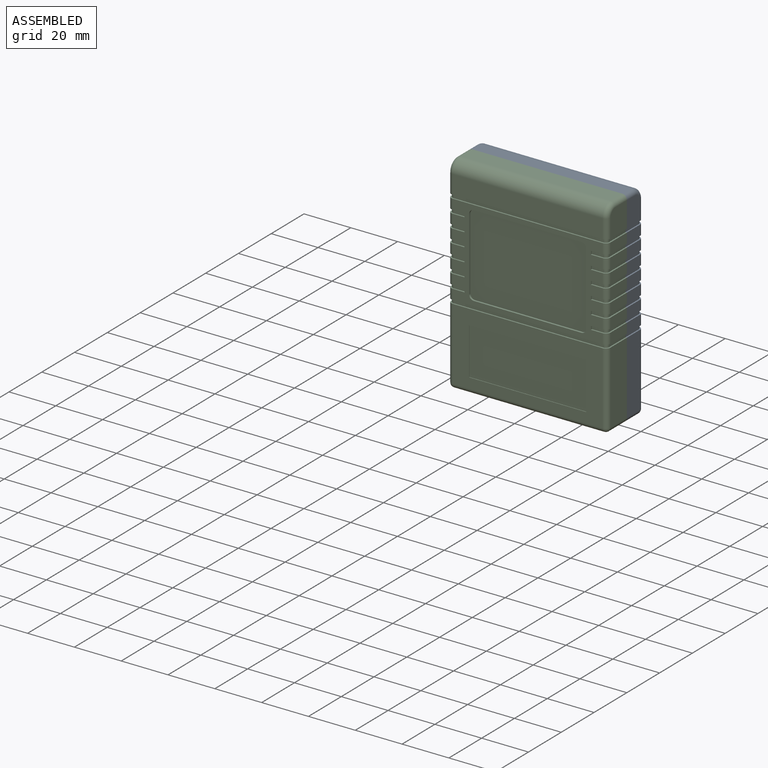
[diagram: assembled view]
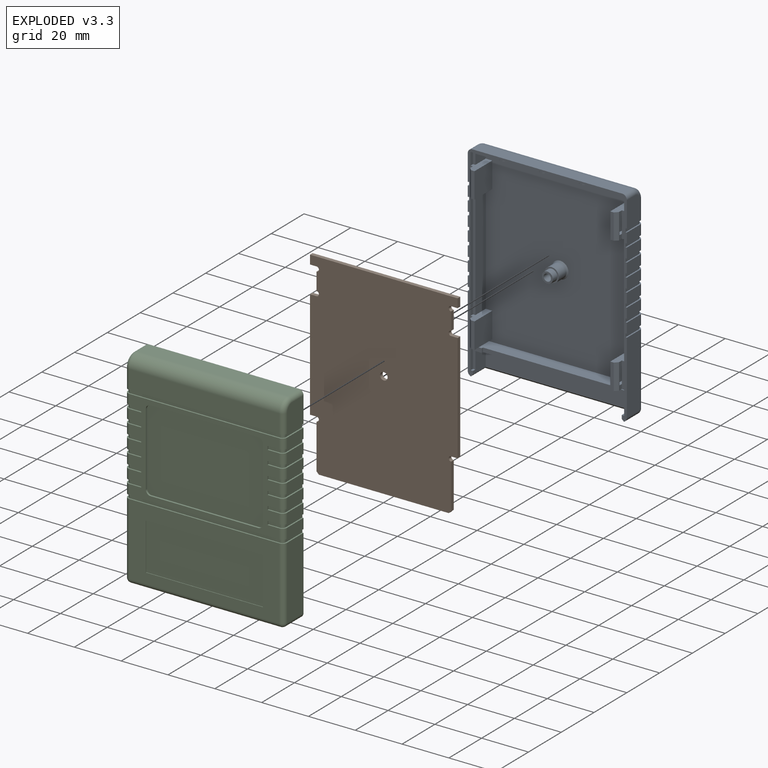
[diagram: exploded view]
GUIDED TOUR — FREECAD ASSEMBLY "C64MegaCartNormalCase"

This assembly has 3 components, labeled P0..P2 below (a component is one placed body or linked part; the same part can appear more than once), held together by 0 modeled joints plus 3 derived contact edges. A joint is a constraint between two components; its type names the relative motion it leaves free:
  CONTACT — a derived adjacency edge — the two components touch in the source model (clearance under 2% of the assembly's diagonal); it is measured from the geometry, not a modeled constraint.
Axis/direction vectors are unit vectors and 'through' points are millimeter coordinates, both in the assembly's world frame.

MATES
  1. CONTACT "contact_0_1": P0 <-> P1, contact direction (0.000, -1.000, 0.000) through (0.72, 0.03, -42.40) mm (derived from contact, not a modeled constraint)
  2. CONTACT "contact_0_2": P0 <-> P2, contact direction (0.000, -1.000, 0.000) through (-32.39, 0.00, -0.04) mm (derived from contact, not a modeled constraint)
  3. CONTACT "contact_1_2": P1 <-> P2, contact direction (0.000, -1.000, 0.000) through (1.35, 0.03, -41.95) mm (derived from contact, not a modeled constraint)

ASSEMBLY ORDER
  1. P0 — the base component [order verified]
  2. P1 [order verified]
  3. P2 [order verified]
Order-tag legend:
  [order verified] — this step's position reverses a verified removal order: the component was checked to insert without passing through the ones already placed.

Of the 3 components, 3 carry a construction recipe — the FreeCAD feature program (sketches with constraints, then the solid features that consume them) that regenerates the part from scratch, quoted from this document or from the linked companion document it references; the rest are supplied as boundary geometry only. The tour below walks the components in assembly order: each is shown spotlighted twice — in the assembled view, then in the exploded view, where a leader line traces a displaced component back to its assembled socket (components that stay in place when exploded have no leader line; saturated green if recipe-attached, orange if geometry-only; every other component desaturated gray) — followed by its recipe or geometry summary and the mates that hold it.
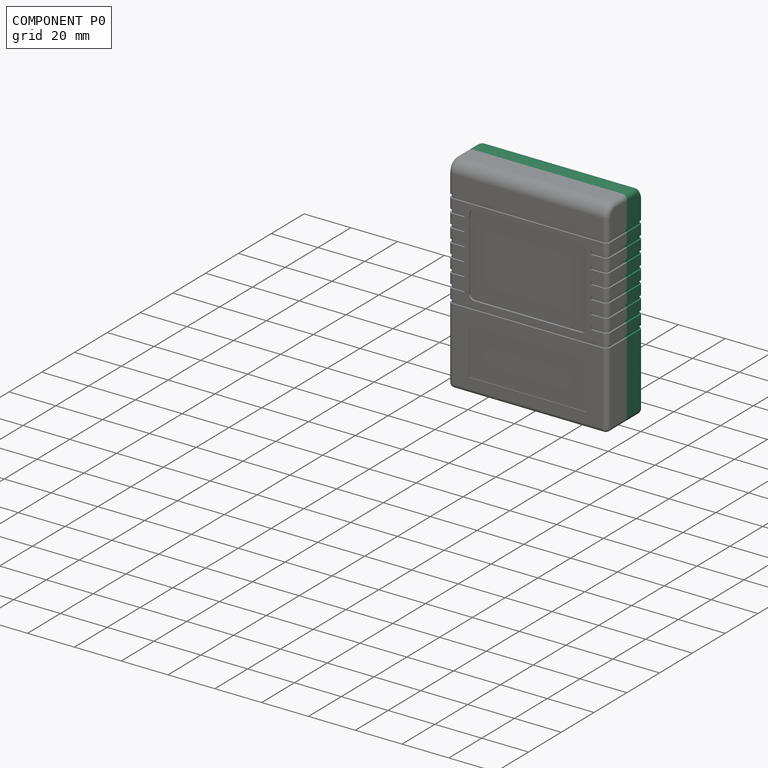
[diagram: component P0 — assembled]
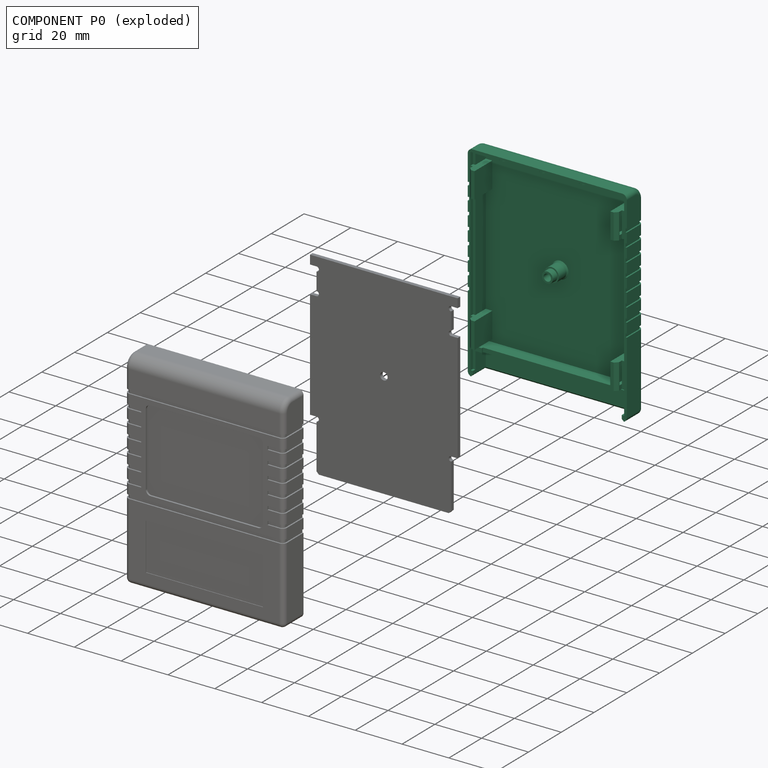
[diagram: component P0 — exploded]
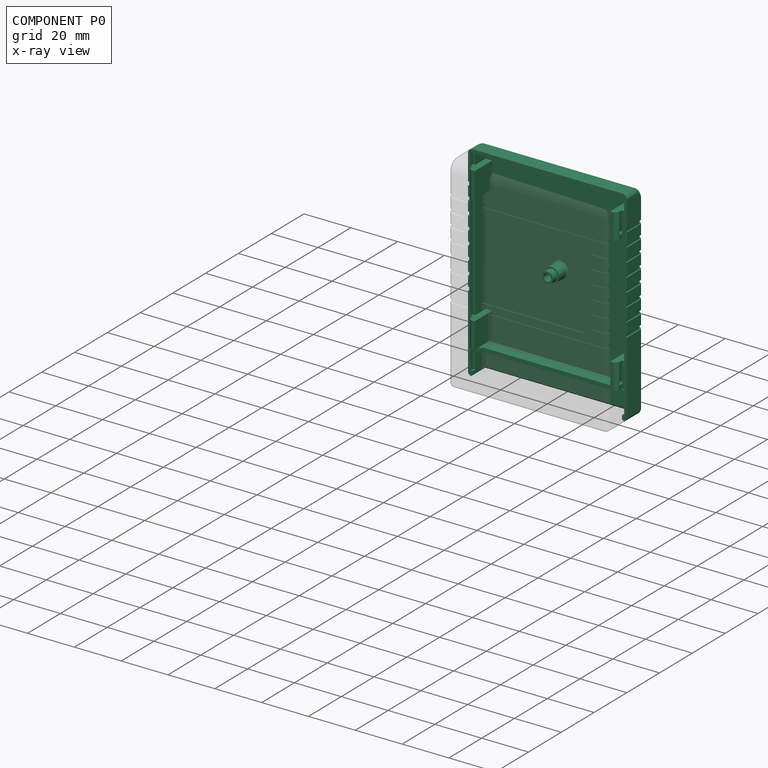
[diagram: component P0 — x-ray view]
COMPONENT P0 — recipe-attached ("bottom001", modeled in this document).
Held by: resting contact with P1 (derived edge); resting contact with P2 (derived edge).
Construction recipe (the document's own serialized feature program — sketch geometry with constraints, then the solid features built on it; lengths are millimeters unless a unit is written):

FEATURE [Sketcher::SketchObject] Sketch
  ArcFitTolerance = 1e-06
  AttachmentSupport = -> [YZ_Plane]
  FullyConstrained = true
  MakeInternals = false
  MapMode = 5
  Placement = pos=(0,0,0) rot=(0.57735,0.57735,0.57735;2.0944rad)
  sketch-geometry (4):
    g0: LineSegment StartX=0 StartY=0 StartZ=0 EndX=0 EndY=-88 EndZ=0
    g1: LineSegment StartX=0 StartY=-88 StartZ=0 EndX=10 EndY=-88 EndZ=0
    g2: LineSegment StartX=10 StartY=-88 StartZ=0 EndX=10 EndY=0 EndZ=0
    g3: LineSegment StartX=10 StartY=0 StartZ=0 EndX=0 EndY=0 EndZ=0
  constraints (11):
    c: Coincident(g-1,g0)
    c: PointOnObject(g0,g-2)
    c: Coincident(g0,g1)
    c: Horizontal(g1)
    c: Coincident(g1,g2)
    c: PointOnObject(g2,g-1)
    c: Vertical(g2)
    c: Coincident(g2,g3)
    c: Coincident(g3,g0)
    c: DistanceX(g3,g3) = 10
    c: DistanceY(g2,g2) = 88
FEATURE [PartDesign::Pad] Pad
  Direction = (1,0,0)
  Length = 68
  Length2 = 10
  Midplane = true
  Placement = pos=(0,0,0) rot=(1,1,1;2.0944rad)
  Profile = -> Sketch
  ReferenceAxis = -> Sketch [N_Axis]
  Refine = true
  Suppressed = false
  Type = 0
FEATURE [PartDesign::Fillet] Fillet
  Base = -> Pad [Edge8]
  BaseFeature = -> Pad
  Placement = pos=(0,0,0) rot=(1,1,1;2.0944rad)
  Radius = 5
  Refine = true
  SupportTransform = false
  Suppressed = false
  UseAllEdges = false
FEATURE [PartDesign::Fillet] Fillet001
  Base = -> Fillet [Edge4,Edge3,Edge12,Edge6,Edge1]
  BaseFeature = -> Fillet
  Placement = pos=(0,0,0) rot=(1,1,1;2.0944rad)
  Radius = 2
  Refine = true
  SupportTransform = false
  Suppressed = false
  UseAllEdges = false
FEATURE [Sketcher::SketchObject] Sketch001
  ArcFitTolerance = 1e-06
  AttachmentSupport = -> [YZ_Plane]
  FullyConstrained = false
  MakeInternals = false
  MapMode = 5
  Placement = pos=(0,0,0) rot=(0.57735,0.57735,0.57735;2.0944rad)
  sketch-geometry (5):
    g0: LineSegment StartX=0 StartY=-2.2 StartZ=0 EndX=5.01607 EndY=-2.2 EndZ=0
    g1: ArcOfCircle CenterX=5.01607 CenterY=-5 CenterZ=0 NormalX=0 NormalY=0 NormalZ=1 AngleXU=0 Radius=2.8 StartAngle=-1.8e-15 EndAngle=1.5708
    g2: LineSegment StartX=7.81607 StartY=-5 StartZ=0 EndX=7.81607 EndY=-90.2 EndZ=0
    g3: LineSegment StartX=7.81607 StartY=-90.2 StartZ=0 EndX=0 EndY=-90.2 EndZ=0
    g4: LineSegment StartX=0 StartY=-90.2 StartZ=0 EndX=0 EndY=-2.2 EndZ=0
  constraints (13):
    c: PointOnObject(g0,g-2)
    c: Horizontal(g0)
    c: Tangent(g0,g1) = 1.5708
    c: Angle(g1) = 1.5708
    c: Tangent(g1,g2) = 1.5708
    c: Coincident(g2,g3)
    c: PointOnObject(g3,g-2)
    c: Coincident(g3,g4)
    c: Coincident(g4,g0)
    c: Horizontal(g3)
    c: Radius(g1) = 2.8
    c: DistanceY(g0,g-1) = 2.2
    c: DistanceY(g4,g4) = 88
FEATURE [PartDesign::Pocket] Pocket
  BaseFeature = -> Fillet001
  Direction = (-1,0,0)
  Length = 63.6
  Length2 = 5
  Midplane = true
  Placement = pos=(0,0,0) rot=(1,1,1;2.0944rad)
  Profile = -> Sketch001
  ReferenceAxis = -> Sketch001 [N_Axis]
  Refine = true
  Suppressed = false
  Type = 0
FEATURE [Sketcher::SketchObject] Sketch002
  ArcFitTolerance = 1e-06
  AttachmentSupport = -> [XZ_Plane]
  ExternalGeometry = -> [Pocket]
  FullyConstrained = true
  MakeInternals = false
  MapMode = 5
  Placement = pos=(0,0,0) rot=(1,0,0;1.5708rad)
  sketch-geometry (3):
    g0: LineSegment StartX=31.8 StartY=-87 StartZ=0 EndX=32.8 EndY=-88 EndZ=0
    g1: LineSegment StartX=32.8 StartY=-88 StartZ=0 EndX=31.8 EndY=-88 EndZ=0
    g2: LineSegment StartX=31.8 StartY=-88 StartZ=0 EndX=31.8 EndY=-87 EndZ=0
  constraints (8):
    c: Coincident(g0,g1)
    c: Horizontal(g1)
    c: Coincident(g1,g2)
    c: Coincident(g2,g0)
    c: Vertical(g2)
    c: Angle(g2,g0) = 0.785398
    c: Coincident(g1,g-3)
    c: DistanceY(g2,g2) = 1
FEATURE [PartDesign::SubtractivePipe] SubtractivePipe
  AuxilleryCurvelinear = true
  AuxillerySpineTangent = false
  BaseFeature = -> Pocket
  Binormal = (0,0,0)
  Mode = 0
  Placement = pos=(0,0,0) rot=(1,1,1;2.0944rad)
  Profile = -> Sketch002
  Refine = true
  Spine = -> Pocket [Edge37,Edge38,Edge39]
  SpineTangent = false
  Suppressed = false
  Transformation = 0
  Transition = 1
FEATURE [Sketcher::SketchObject] Sketch003
  ArcFitTolerance = 1e-06
  AttachmentOffset = pos=(0,0,-78.4) rot=(0,0,1;0rad)
  AttachmentSupport = -> [XY_Plane]
  FullyConstrained = true
  MakeInternals = false
  MapMode = 5
  Placement = pos=(0,0,-78.4) rot=(0,0,1;0rad)
  sketch-geometry (8):
    g0: LineSegment StartX=-32 StartY=8 StartZ=0 EndX=32 EndY=8 EndZ=0
    g1: LineSegment StartX=32 StartY=8 StartZ=0 EndX=32 EndY=0 EndZ=0
    g2: LineSegment StartX=32 StartY=0 StartZ=0 EndX=29 EndY=0 EndZ=0
    g3: LineSegment StartX=29 StartY=0 StartZ=0 EndX=29 EndY=2.2 EndZ=0
    g4: LineSegment StartX=29 StartY=2.2 StartZ=0 EndX=-29 EndY=2.2 EndZ=0
    g5: LineSegment StartX=-29 StartY=2.2 StartZ=0 EndX=-29 EndY=0 EndZ=0
    g6: LineSegment StartX=-29 StartY=0 StartZ=0 EndX=-32 EndY=0 EndZ=0
    g7: LineSegment StartX=-32 StartY=0 StartZ=0 EndX=-32 EndY=8 EndZ=0
  constraints (23):
    c: Coincident(g0,g1)
    c: Vertical(g1)
    c: Coincident(g1,g2)
    c: Horizontal(g2)
    c: Coincident(g2,g3)
    c: Vertical(g3)
    c: Coincident(g3,g4)
    c: Coincident(g4,g5)
    c: Vertical(g5)
    c: Coincident(g5,g6)
    c: Coincident(g6,g7)
    c: Coincident(g7,g0)
    c: Horizontal(g6)
    c: Vertical(g7)
    c: Equal(g6,g2)
    c: Equal(g3,g5)
    c: Symmetric(g4,g3,g-2)
    c: Horizontal(g0)
    c: PointOnObject(g6,g-1)
    c: DistanceX(g4,g4) = 58
    c: DistanceX(g6,g6) = 3
    c: DistanceY(g1,g1) = 8
    c: DistanceY(g5,g5) = 2.2
FEATURE [PartDesign::Pad] Pad001
  BaseFeature = -> SubtractivePipe
  Direction = (0,0,1)
  Length = 1.8
  Length2 = 10
  Placement = pos=(0,0,0) rot=(1,1,1;2.0944rad)
  Profile = -> Sketch003
  ReferenceAxis = -> Sketch003 [N_Axis]
  Refine = true
  Suppressed = false
  Type = 0
FEATURE [Sketcher::SketchObject] Sketch004
  ArcFitTolerance = 1e-06
  AttachmentSupport = -> [XZ_Plane]
  FullyConstrained = true
  MakeInternals = false
  MapMode = 5
  Placement = pos=(0,0,0) rot=(1,0,0;1.5708rad)
  sketch-geometry (4):
    g0: LineSegment StartX=-32.8 StartY=-1.2 StartZ=0 EndX=-32.8 EndY=-85.531 EndZ=0
    g1: LineSegment StartX=-32.8 StartY=-85.531 StartZ=0 EndX=32.8 EndY=-85.531 EndZ=0
    g2: LineSegment StartX=32.8 StartY=-85.531 StartZ=0 EndX=32.8 EndY=-1.2 EndZ=0
    g3: LineSegment StartX=32.8 StartY=-1.2 StartZ=0 EndX=-32.8 EndY=-1.2 EndZ=0
  constraints (11):
    c: Coincident(g0,g1)
    c: Coincident(g1,g2)
    c: Coincident(g2,g3)
    c: Coincident(g3,g0)
    c: Vertical(g0)
    c: Vertical(g2)
    c: Horizontal(g1)
    c: Symmetric(g0,g2,g-2)
    c: DistanceX(g3,g3) = 65.6
    c: DistanceY(g2,g-1) = 1.2
    c: DistanceY(g0,g0) = 84.331
FEATURE [PartDesign::Pocket] Pocket001
  BaseFeature = -> Pad001
  Direction = (0,1,-2e-16)
  Length = 1.5
  Length2 = 5
  Placement = pos=(0,0,0) rot=(1,1,1;2.0944rad)
  Profile = -> Sketch004
  ReferenceAxis = -> Sketch004 [N_Axis]
  Refine = true
  Suppressed = false
  Type = 0
FEATURE [Sketcher::SketchObject] Sketch005
  ArcFitTolerance = 1e-06
  AttachmentSupport = -> [Pocket]
  FullyConstrained = true
  MakeInternals = false
  MapMode = 5
  Placement = pos=(1.7e-15,7.81607,-7e-16) rot=(0.57735,0.57735,-0.57735;2.0944rad)
  sketch-geometry (1):
    g0: Circle CenterX=41 CenterY=0 CenterZ=0 NormalX=0 NormalY=0 NormalZ=1 AngleXU=0 Radius=3.075
  constraints (3):
    c: PointOnObject(g0,g-1)
    c: DistanceX(g-1,g0) = 41
    c: Diameter(g0) = 6.15
FEATURE [PartDesign::Pad] Pad002
  BaseFeature = -> Pocket001
  Direction = (0,-1,0)
  Length = 5.2
  Length2 = 10
  Placement = pos=(0,0,0) rot=(1,1,1;2.0944rad)
  Profile = -> Sketch005
  ReferenceAxis = -> Sketch005 [N_Axis]
  Refine = true
  Suppressed = false
  Type = 0
FEATURE [Sketcher::SketchObject] Sketch006
  ArcFitTolerance = 1e-06
  AttachmentSupport = -> [XZ_Plane]
  ExternalGeometry = -> [Pad002]
  FullyConstrained = true
  MakeInternals = false
  MapMode = 5
  Placement = pos=(0,0,0) rot=(1,0,0;1.5708rad)
  sketch-geometry (1):
    g0: Circle CenterX=0 CenterY=-41 CenterZ=0 NormalX=0 NormalY=0 NormalZ=1 AngleXU=0 Radius=0.5
  constraints (2):
    c: Diameter(g0) = 1
    c: Coincident(g0,g-3)
FEATURE [PartDesign::Pocket] Pocket002
  BaseFeature = -> Pad002
  Direction = (0,1,-2e-16)
  Length = 5
  Length2 = 5
  Placement = pos=(0,0,0) rot=(1,1,1;2.0944rad)
  Profile = -> Sketch006
  ReferenceAxis = -> Sketch006 [N_Axis]
  Refine = true
  Suppressed = false
  Type = 1
FEATURE [PartDesign::Chamfer] Chamfer
  Angle = 45
  Base = -> Pocket002 [Edge65]
  BaseFeature = -> Pocket002
  ChamferType = 0
  FlipDirection = false
  Placement = pos=(0,0,0) rot=(1,1,1;2.0944rad)
  Refine = true
  Size = 0.5
  Size2 = 1
  SupportTransform = false
  Suppressed = false
  UseAllEdges = false
FEATURE [PartDesign::Plane] DatumPlane
  AttachmentOffset = pos=(0,0,-12) rot=(0,0,1;0rad)
  AttachmentSupport = -> [XY_Plane]
  Length = 79.6619
  MapMode = 5
  Placement = pos=(0,0,-12) rot=(0,0,1;0rad)
  ResizeMode = 0
  Width = 61.6619
FEATURE [Sketcher::SketchObject] Sketch007
  ArcFitTolerance = 1e-06
  AttachmentSupport = -> [DatumPlane]
  FullyConstrained = true
  MakeInternals = false
  MapMode = 5
  Placement = pos=(0,0,-12) rot=(0,0,1;0rad)
  sketch-geometry (7):
    g0: LineSegment StartX=29 StartY=8 StartZ=0 EndX=29 EndY=-3 EndZ=0
    g1: LineSegment StartX=29 StartY=-3 StartZ=0 EndX=30.5 EndY=-3 EndZ=0
    g2: LineSegment StartX=30.5 StartY=-3 StartZ=0 EndX=31.8 EndY=-1.7 EndZ=0
    g3: LineSegment StartX=31.8 StartY=-1.7 StartZ=0 EndX=31.8 EndY=0 EndZ=0
    g4: LineSegment StartX=31.8 StartY=0 StartZ=0 EndX=33 EndY=0 EndZ=0
    g5: LineSegment StartX=33 StartY=0 StartZ=0 EndX=33 EndY=8 EndZ=0
    g6: LineSegment StartX=33 StartY=8 StartZ=0 EndX=29 EndY=8 EndZ=0
  constraints (21):
    c: Vertical(g0)
    c: Coincident(g0,g1)
    c: Horizontal(g1)
    c: Coincident(g1,g2)
    c: Coincident(g2,g3)
    c: PointOnObject(g3,g-1)
    c: Vertical(g3)
    c: Coincident(g3,g4)
    c: PointOnObject(g4,g-1)
    c: Coincident(g4,g5)
    c: Vertical(g5)
    c: Coincident(g5,g6)
    c: Coincident(g6,g0)
    c: Horizontal(g6)
    c: DistanceX(g1,g1) = 1.5
    c: DistanceY(g-1,g0) = 8
    c: Angle(g2,g1) = 2.35619
    c: DistanceX(g-1,g0) = 29
    c: DistanceX(g0,g2) = 2.8
    c: DistanceY(g3,g3) = 1.7
    c: DistanceX(g4,g4) = 1.2
FEATURE [PartDesign::Pad] Pad003
  BaseFeature = -> Chamfer
  Direction = (0,0,1)
  Length = 11
  Length2 = 10
  Midplane = true
  Placement = pos=(0,0,0) rot=(1,1,1;2.0944rad)
  Profile = -> Sketch007
  ReferenceAxis = -> Sketch007 [N_Axis]
  Refine = true
  Suppressed = false
  Type = 0
FEATURE [Sketcher::SketchObject] Sketch008
  ArcFitTolerance = 1e-06
  AttachmentSupport = -> [DatumPlane]
  ExternalGeometry = -> [Sketch007]
  FullyConstrained = false
  MakeInternals = false
  MapMode = 5
  Placement = pos=(0,0,-12) rot=(0,0,1;0rad)
  sketch-geometry (5):
    g0: LineSegment StartX=29.881 StartY=11 StartZ=0 EndX=30.3 EndY=-1 EndZ=0
    g1: LineSegment StartX=30.3 StartY=-1 StartZ=0 EndX=31.0416 EndY=-1 EndZ=0
    g2: LineSegment StartX=31.0416 StartY=-1 StartZ=0 EndX=31.8 EndY=-1.4 EndZ=0
    g3: LineSegment StartX=31.8 StartY=-1.4 StartZ=0 EndX=32.233 EndY=11 EndZ=0
    g4: LineSegment StartX=32.233 StartY=11 StartZ=0 EndX=29.881 EndY=11 EndZ=0
  constraints (14):
    c: Coincident(g0,g1)
    c: Horizontal(g1)
    c: Coincident(g1,g2)
    c: Coincident(g2,g3)
    c: Coincident(g3,g4)
    c: Coincident(g4,g0)
    c: Horizontal(g4)
    c: PointOnObject(g2,g-3)
    c: DistanceY(g-3,g2) = 0.3
    c: DistanceX(g0,g2) = 1.5
    c: DistanceY(g-3,g1) = 0.7
    c: Angle(g0,g-1) = 1.53589
    c: Angle(g3,g-1) = 1.6057
    c: DistanceY(g-1,g0) = 11
FEATURE [PartDesign::Pocket] Pocket003
  BaseFeature = -> Pad003
  Direction = (0,0,-1)
  Length = 7.1
  Length2 = 5
  Midplane = true
  Placement = pos=(0,0,0) rot=(1,1,1;2.0944rad)
  Profile = -> Sketch008
  ReferenceAxis = -> Sketch008 [N_Axis]
  Refine = true
  Suppressed = false
  Type = 0
FEATURE [PartDesign::Draft] Draft
  Angle = 2
  Base = -> Pocket003 [Face31,Face29]
  BaseFeature = -> Pocket003
  NeutralPlane = -> Pocket003 [Face55]
  Placement = pos=(0,0,0) rot=(1,1,1;2.0944rad)
  Refine = true
  Reversed = true
  SupportTransform = false
  Suppressed = false
FEATURE [PartDesign::Plane] DatumPlane001
  AttachmentOffset = pos=(0,0,-70) rot=(0,0,1;0rad)
  AttachmentSupport = -> [XY_Plane]
  Length = 79.6619
  MapMode = 5
  Placement = pos=(0,0,-70) rot=(0,0,1;0rad)
  ResizeMode = 0
  Width = 61.6619
FEATURE [Sketcher::SketchObject] Sketch009
  ArcFitTolerance = 1e-06
  AttachmentSupport = -> [DatumPlane001]
  FullyConstrained = true
  MakeInternals = false
  MapMode = 5
  Placement = pos=(0,0,-70) rot=(0,0,1;0rad)
  sketch-geometry (7):
    g0: LineSegment StartX=29 StartY=8 StartZ=0 EndX=29 EndY=-3 EndZ=0
    g1: LineSegment StartX=29 StartY=-3 StartZ=0 EndX=30.5 EndY=-3 EndZ=0
    g2: LineSegment StartX=30.5 StartY=-3 StartZ=0 EndX=31.8 EndY=-1.7 EndZ=0
    g3: LineSegment StartX=31.8 StartY=-1.7 StartZ=0 EndX=31.8 EndY=0 EndZ=0
    g4: LineSegment StartX=31.8 StartY=0 StartZ=0 EndX=33 EndY=0 EndZ=0
    g5: LineSegment StartX=33 StartY=0 StartZ=0 EndX=33 EndY=8 EndZ=0
    g6: LineSegment StartX=33 StartY=8 StartZ=0 EndX=29 EndY=8 EndZ=0
  constraints (21):
    c: Vertical(g0)
    c: Coincident(g0,g1)
    c: Horizontal(g1)
    c: Coincident(g1,g2)
    c: Coincident(g2,g3)
    c: PointOnObject(g3,g-1)
    c: Vertical(g3)
    c: Coincident(g3,g4)
    c: PointOnObject(g4,g-1)
    c: Coincident(g4,g5)
    c: Vertical(g5)
    c: Coincident(g5,g6)
    c: Horizontal(g6)
    c: DistanceX(g1,g1) = 1.5
    c: Angle(g2,g1) = 2.35619
    c: DistanceX(g0,g2) = 2.8
    c: Coincident(g6,g0)
    c: DistanceY(g-1,g0) = 8
    c: DistanceX(g4,g4) = 1.2
    c: DistanceX(g-1,g0) = 29
    c: DistanceY(g3,g3) = 1.7
FEATURE [PartDesign::Pad] Pad004
  BaseFeature = -> Draft
  Direction = (0,0,1)
  Length = 11
  Length2 = 10
  Midplane = true
  Placement = pos=(0,0,0) rot=(1,1,1;2.0944rad)
  Profile = -> Sketch009
  ReferenceAxis = -> Sketch009 [N_Axis]
  Refine = true
  Suppressed = false
  Type = 0
FEATURE [Sketcher::SketchObject] Sketch010
  ArcFitTolerance = 1e-06
  AttachmentSupport = -> [DatumPlane001]
  ExternalGeometry = -> [Sketch009]
  FullyConstrained = true
  MakeInternals = false
  MapMode = 5
  Placement = pos=(0,0,-70) rot=(0,0,1;0rad)
  sketch-geometry (5):
    g0: LineSegment StartX=29.881 StartY=11 StartZ=0 EndX=30.3 EndY=-1 EndZ=0
    g1: LineSegment StartX=30.3 StartY=-1 StartZ=0 EndX=31.05 EndY=-1 EndZ=0
    g2: LineSegment StartX=31.05 StartY=-1 StartZ=0 EndX=31.8 EndY=-1.4 EndZ=0
    g3: LineSegment StartX=31.8 StartY=-1.4 StartZ=0 EndX=32.233 EndY=11 EndZ=0
    g4: LineSegment StartX=32.233 StartY=11 StartZ=0 EndX=29.881 EndY=11 EndZ=0
  constraints (15):
    c: Coincident(g0,g1)
    c: Horizontal(g1)
    c: Coincident(g1,g2)
    c: Coincident(g2,g3)
    c: Coincident(g3,g4)
    c: Coincident(g4,g0)
    c: Horizontal(g4)
    c: PointOnObject(g2,g-3)
    c: DistanceY(g-3,g2) = 0.3
    c: DistanceX(g1,g1) = 0.75
    c: DistanceY(g2,g1) = 0.4
    c: DistanceX(g0,g2) = 1.5
    c: Angle(g0,g-1) = 1.53589
    c: Angle(g3,g-1) = 1.6057
    c: DistanceY(g-1,g0) = 11
FEATURE [PartDesign::Pocket] Pocket004
  BaseFeature = -> Pad004
  Direction = (0,0,-1)
  Length = 7.1
  Length2 = 5
  Midplane = true
  Placement = pos=(0,0,0) rot=(1,1,1;2.0944rad)
  Profile = -> Sketch010
  ReferenceAxis = -> Sketch010 [N_Axis]
  Refine = true
  Suppressed = false
  Type = 0
FEATURE [PartDesign::Draft] Draft001
  Angle = 2
  Base = -> Pocket004 [Face41,Face43]
  BaseFeature = -> Pocket004
  NeutralPlane = -> Pocket004 [Face70]
  Placement = pos=(0,0,0) rot=(1,1,1;2.0944rad)
  Refine = true
  Reversed = true
  SupportTransform = false
  Suppressed = false
FEATURE [PartDesign::Mirrored] Mirrored
  BaseFeature = -> Draft001
  MirrorPlane = -> YZ_Plane
  Originals = -> [Pad003,Pocket003,Draft,Pad004,Pocket004,Draft001]
  Placement = pos=(0,0,0) rot=(1,1,1;2.0944rad)
  Refine = true
  Suppressed = false
  TransformMode = 0
FEATURE [Sketcher::SketchObject] Sketch011
  ArcFitTolerance = 1e-06
  AttachmentOffset = pos=(0,0,-55.1) rot=(0,0,1;0rad)
  AttachmentSupport = -> [XY_Plane]
  ExternalGeometry = -> [Fillet001]
  FullyConstrained = true
  MakeInternals = false
  MapMode = 5
  Placement = pos=(0,0,-55.1) rot=(0,0,1;0rad)
  sketch-geometry (12):
    g0: LineSegment StartX=-33.4 StartY=0 StartZ=0 EndX=-33.4 EndY=8 EndZ=0
    g1: LineSegment StartX=-32 StartY=9.4 StartZ=0 EndX=32 EndY=9.4 EndZ=0
    g2: LineSegment StartX=33.4 StartY=8 StartZ=0 EndX=33.4 EndY=0 EndZ=0
    g3: LineSegment StartX=33.4 StartY=0 StartZ=0 EndX=38.4 EndY=0 EndZ=0
    g4: LineSegment StartX=38.4 StartY=0 StartZ=0 EndX=38.4 EndY=20 EndZ=0
    g5: LineSegment StartX=38.4 StartY=20 StartZ=0 EndX=-38.4 EndY=20 EndZ=0
    g6: LineSegment StartX=-38.4 StartY=20 StartZ=0 EndX=-38.4 EndY=0 EndZ=0
    g7: LineSegment StartX=-38.4 StartY=0 StartZ=0 EndX=-33.4 EndY=0 EndZ=0
    g8: ArcOfCircle CenterX=-32 CenterY=8 CenterZ=0 NormalX=0 NormalY=0 NormalZ=1 AngleXU=0 Radius=1.4 StartAngle=1.5708 EndAngle=3.14159
    g9: GeomPoint [constr] X=-33.4 Y=9.4 Z=0
    g10: ArcOfCircle CenterX=32 CenterY=8 CenterZ=0 NormalX=0 NormalY=0 NormalZ=1 AngleXU=0 Radius=1.4 StartAngle=0 EndAngle=1.5708
    g11: GeomPoint [constr] X=33.4 Y=9.4 Z=0
  constraints (30):
    c: PointOnObject(g0,g-1)
    c: Vertical(g0)
    c: PointOnObject(g2,g-1)
    c: Vertical(g2)
    c: Coincident(g2,g3)
    c: PointOnObject(g3,g-1)
    c: Coincident(g3,g4)
    c: Vertical(g4)
    c: Coincident(g4,g5)
    c: Coincident(g5,g6)
    c: PointOnObject(g6,g-1)
    c: Vertical(g6)
    c: Coincident(g6,g7)
    c: Coincident(g7,g0)
    c: Symmetric(g9,g11,g-2)
    c: Horizontal(g5)
    c: PointOnObject(g9,g0)
    c: PointOnObject(g9,g1)
    c: Tangent(g0,g8) = 1.5708
    c: Tangent(g1,g8) = 1.5708
    c: PointOnObject(g11,g1)
    c: PointOnObject(g11,g2)
    c: Tangent(g1,g10) = 1.5708
    c: Tangent(g2,g10) = 1.5708
    c: Equal(g8,g10)
    c: Coincident(g10,g-3)
    c: DistanceY(g1,g-3) = 0.6
    c: DistanceX(g3,g3) = 5
    c: DistanceY(g4,g4) = 20
    c: Equal(g7,g3)
FEATURE [PartDesign::Pocket] Pocket005
  BaseFeature = -> Mirrored
  Direction = (0,0,-1)
  Length = 1.5
  Length2 = 5
  Placement = pos=(0,0,0) rot=(1,1,1;2.0944rad)
  Profile = -> Sketch011
  ReferenceAxis = -> Sketch011 [N_Axis]
  Refine = true
  Reversed = true
  Suppressed = false
  Type = 0
FEATURE [PartDesign::LinearPattern] LinearPattern
  BaseFeature = -> Pocket005
  Direction = -> Z_Axis
  Length = 40.6
  Mode = 0
  Occurrences = 8
  Offset = 5.8
  Originals = -> [Pocket005]
  Placement = pos=(0,0,0) rot=(1,1,1;2.0944rad)
  Refine = true
  Suppressed = false
  TransformMode = 0
FEATURE [Sketcher::SketchObject] Sketch026
  ArcFitTolerance = 1e-06
  AttachmentOffset = pos=(0,0,-2.2) rot=(0,0,1;0rad)
  AttachmentSupport = -> [XY_Plane]
  FullyConstrained = true
  MakeInternals = false
  MapMode = 5
  Placement = pos=(0,0,-2.2) rot=(0,0,1;0rad)
  sketch-geometry (13):
    g0: ArcOfCircle CenterX=-17 CenterY=0 CenterZ=0 NormalX=0 NormalY=0 NormalZ=1 AngleXU=0 Radius=3.5 StartAngle=1e-16 EndAngle=3.14159
    g1: LineSegment StartX=-13.5 StartY=4e-16 StartZ=0 EndX=-13.5 EndY=-5 EndZ=0
    g2: LineSegment StartX=-20.5 StartY=4e-16 StartZ=0 EndX=-20.5 EndY=-5 EndZ=0
    g3: ArcOfCircle CenterX=0 CenterY=0 CenterZ=0 NormalX=0 NormalY=0 NormalZ=1 AngleXU=0 Radius=3.5 StartAngle=1e-16 EndAngle=3.14159
    g4: LineSegment StartX=3.5 StartY=4e-16 StartZ=0 EndX=3.5 EndY=-5 EndZ=0
    g5: LineSegment StartX=-3.5 StartY=4e-16 StartZ=0 EndX=-3.5 EndY=-5 EndZ=0
    g6: ArcOfCircle CenterX=17 CenterY=0 CenterZ=0 NormalX=0 NormalY=0 NormalZ=1 AngleXU=0 Radius=3.5 StartAngle=1e-16 EndAngle=3.14159
    g7: LineSegment StartX=20.5 StartY=4e-16 StartZ=0 EndX=20.5 EndY=-5 EndZ=0
    g8: LineSegment StartX=13.5 StartY=4e-16 StartZ=0 EndX=13.5 EndY=-5 EndZ=0
    g9: LineSegment StartX=-20.5 StartY=-5 StartZ=0 EndX=-13.5 EndY=-5 EndZ=0
    g10: LineSegment StartX=-3.5 StartY=-5 StartZ=0 EndX=3.5 EndY=-5 EndZ=0
    g11: LineSegment StartX=13.5 StartY=-5 StartZ=0 EndX=20.5 EndY=-5 EndZ=0
    g12: LineSegment [constr] StartX=20.5 StartY=-5 StartZ=0 EndX=-20.5 EndY=-5 EndZ=0
  constraints (34):
    c: Tangent(g0,g1) = 1.5708
    c: Tangent(g0,g2) = -1.5708
    c: PointOnObject(g0,g-1)
    c: Vertical(g1)
    c: Tangent(g3,g4) = 1.5708
    c: Tangent(g3,g5) = -1.5708
    c: Coincident(g3,g-1)
    c: Tangent(g6,g7) = 1.5708
    c: Tangent(g6,g8) = -1.5708
    c: Coincident(g9,g2)
    c: Coincident(g9,g1)
    c: Horizontal(g9)
    c: Coincident(g10,g5)
    c: Coincident(g11,g8)
    c: Coincident(g11,g7)
    c: Horizontal(g11)
    c: Horizontal(g12)
    c: Coincident(g10,g4)
    c: Coincident(g2,g12)
    c: Coincident(g12,g7)
    c: Equal(g0,g3)
    c: Equal(g3,g6)
    c: Radius(g6) = 3.5
    c: DistanceX(g3,g6) = 17
    c: DistanceX(g0,g3) = 17
    c: Vertical(g2)
    c: Vertical(g4)
    c: PointOnObject(g5,g12)
    c: PointOnObject(g4,g12)
    c: Vertical(g8)
    c: Vertical(g7)
    c: PointOnObject(g6,g-1)
    c: DistanceY(g4,g4) = 5
    c: Vertical(g5)
FEATURE [Sketcher::SketchObject] Sketch027
  ArcFitTolerance = 1e-06
  AttachmentSupport = -> [YZ_Plane]
  FullyConstrained = true
  MakeInternals = false
  MapMode = 5
  Placement = pos=(0,0,0) rot=(0.57735,0.57735,0.57735;2.0944rad)
  sketch-geometry (6):
    g0: LineSegment StartX=10 StartY=-37.45 StartZ=0 EndX=7.81779 EndY=-39.6322 EndZ=0
    g1: LineSegment StartX=7.81779 StartY=-39.6322 StartZ=0 EndX=2.6 EndY=-39.45 EndZ=0
    g2: LineSegment StartX=2.6 StartY=-39.45 StartZ=0 EndX=2.6 EndY=-41 EndZ=0
    g3: LineSegment StartX=2.6 StartY=-41 StartZ=0 EndX=10 EndY=-41 EndZ=0
    g4: LineSegment StartX=10 StartY=-41 StartZ=0 EndX=10 EndY=-37.45 EndZ=0
    g5: LineSegment [constr] StartX=0 StartY=-41 StartZ=0 EndX=10 EndY=-41 EndZ=0
  constraints (18):
    c: Coincident(g0,g1)
    c: Coincident(g1,g2)
    c: Vertical(g2)
    c: Coincident(g2,g3)
    c: Coincident(g3,g4)
    c: Coincident(g4,g0)
    c: Vertical(g4)
    c: Angle(g4,g0) = 2.35619
    c: DistanceY(g4,g4) = 3.55
    c: DistanceY(g2,g1) = 1.55
    c: DistanceY(g2,g-1) = 41
    c: PointOnObject(g5,g-2)
    c: Horizontal(g5)
    c: DistanceX(g5,g5) = 10
    c: PointOnObject(g2,g5)
    c: Coincident(g3,g5)
    c: DistanceX(g5,g2) = 2.6
    c: Angle(g1,g3) = 0.0349066
FEATURE [PartDesign::Groove] Groove001
  Angle = 360
  Angle2 = 60
  Axis = (0,10,0)
  Base = (0,0,-41)
  BaseFeature = -> LinearPattern
  Placement = pos=(0,0,0) rot=(1,1,1;2.0944rad)
  Profile = -> Sketch027
  ReferenceAxis = -> Sketch027 [Axis]
  Refine = true
  Reversed = true
  Suppressed = false
  Type = 0
FEATURE [PartDesign::Pocket] Pocket013
  BaseFeature = -> Groove001
  Direction = (0,0,-1)
  Length = 1.4
  Length2 = 5
  Placement = pos=(0,0,0) rot=(1,1,1;2.0944rad)
  Profile = -> Sketch026
  ReferenceAxis = -> Sketch026 [N_Axis]
  Refine = true
  Reversed = true
  Suppressed = false
  Type = 0
FEATURE [PartDesign::AdditiveCone] Cone
  Angle = 360
  AttacherType = Attacher::AttachEngine3D
  AttachmentOffset = pos=(0,-41,0) rot=(0,1,0;1.5708rad)
  AttachmentSupport = -> [Pad002]
  BaseFeature = -> Pocket013
  Height = 3
  MapMode = 2
  Placement = pos=(0,0,-41) rot=(0,0.707107,0.707107;3.14159rad)
  Radius1 = 2.35
  Radius2 = 2.5
  Refine = true
  Suppressed = false
FEATURE [PartDesign::SubtractiveCylinder] Cylinder
  Angle = 360
  AttacherType = Attacher::AttachEngine3D
  AttachmentOffset = pos=(0,-41,0) rot=(0,1,0;1.5708rad)
  AttachmentSupport = -> [Pad002]
  BaseFeature = -> Cone
  FirstAngle = 0
  Height = 3
  MapMode = 2
  Placement = pos=(0,0,-41) rot=(0,0.707107,0.707107;3.14159rad)
  Radius = 1.55
  Refine = true
  SecondAngle = 0
  Suppressed = false
FEATURE [PartDesign::Body] Body  label="bottom"
  AllowCompound = false
  Group = -> [Sketch,Pad,Fillet,Fillet001,Sketch001,Pocket,Sketch002,SubtractivePipe,Sketch003,Pad001,Sketch004,Pocket001,Sketch005,Pad002,Sketch006,Pocket002,Chamfer,DatumPlane,Sketch007,Pad003,Sketch008,Pocket003,Draft,DatumPlane001,Sketch009,Pad004,Sketch010,Pocket004,Draft001,Mirrored,Sketch011,Pocket005,LinearPattern,Sketch027,Groove001,Sketch026,Pocket013,Cone,Cylinder]
  Origin = -> Origin
  Tip = -> Cylinder
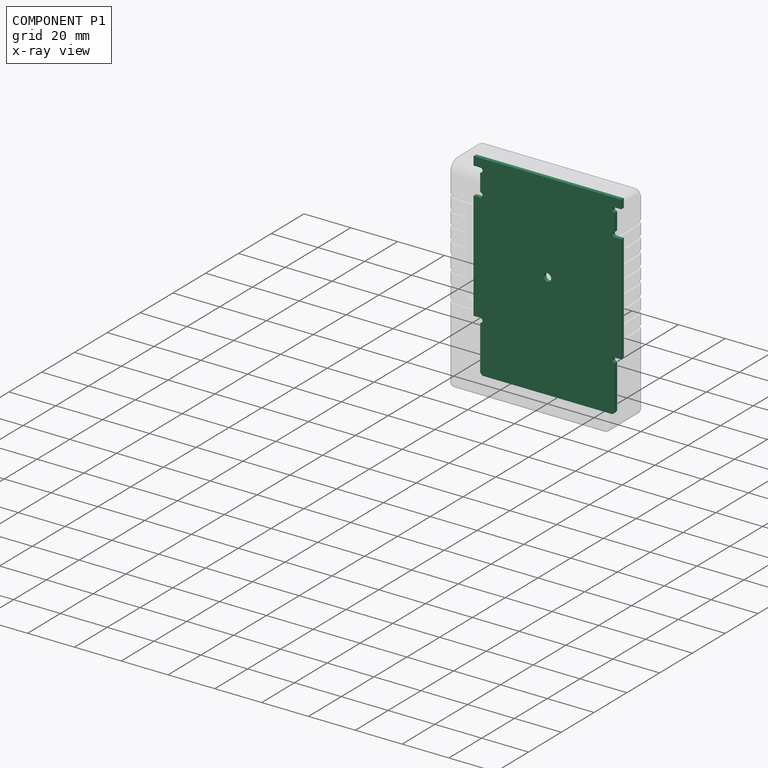
[diagram: component P1 — x-ray view]
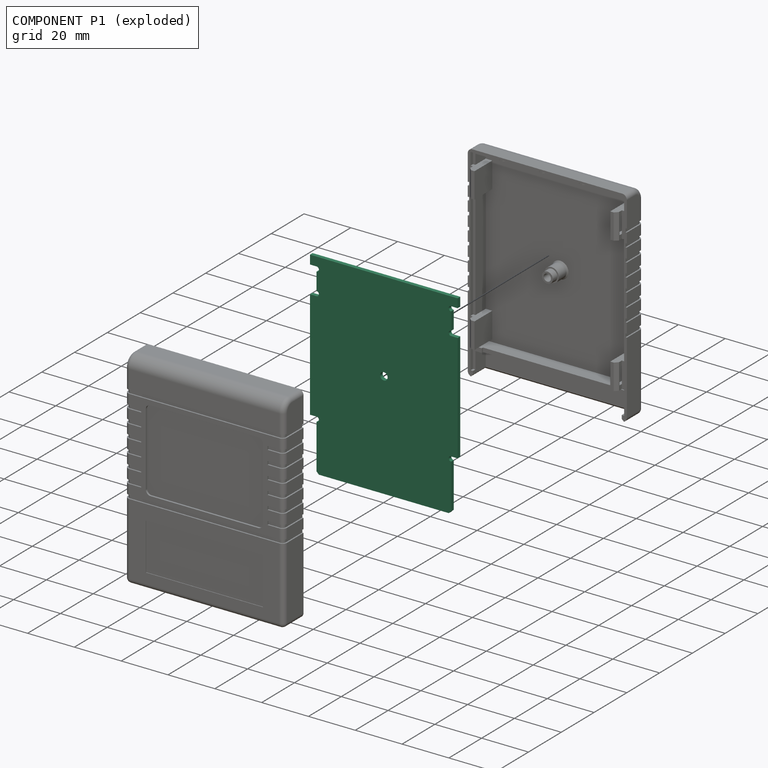
[diagram: component P1 — exploded]
COMPONENT P1 — recipe-attached ("pcb001", modeled in this document).
Held by: resting contact with P0 (derived edge); resting contact with P2 (derived edge).
Construction recipe (the document's own serialized feature program — sketch geometry with constraints, then the solid features built on it; lengths are millimeters unless a unit is written):

FEATURE [Sketcher::SketchObject] Sketch028
  ArcFitTolerance = 1e-06
  AttachmentSupport = -> [XZ_Plane003]
  FullyConstrained = true
  MakeInternals = false
  MapMode = 5
  Placement = pos=(0,0,0) rot=(1,0,0;1.5708rad)
  sketch-geometry (14):
    g0: LineSegment StartX=0 StartY=1.48 StartZ=0 EndX=27.75 EndY=1.48 EndZ=0
    g1: LineSegment StartX=27.75 StartY=1.48 StartZ=0 EndX=28.75 EndY=2.48 EndZ=0
    g2: LineSegment StartX=28.75 StartY=2.48 StartZ=0 EndX=28.75 EndY=21.63 EndZ=0
    g3: ArcOfCircle CenterX=28.75 CenterY=22.63 CenterZ=0 NormalX=0 NormalY=0 NormalZ=1 AngleXU=0 Radius=1 StartAngle=1.5708 EndAngle=4.71239
    g4: LineSegment StartX=28.75 StartY=23.63 StartZ=0 EndX=31.55 EndY=23.63 EndZ=0
    g5: LineSegment StartX=31.55 StartY=23.63 StartZ=0 EndX=31.55 EndY=70.13 EndZ=0
    g6: LineSegment StartX=31.55 StartY=70.13 StartZ=0 EndX=28.75 EndY=70.13 EndZ=0
    g7: ArcOfCircle CenterX=28.75 CenterY=71.13 CenterZ=0 NormalX=0 NormalY=0 NormalZ=1 AngleXU=0 Radius=1 StartAngle=1.5708 EndAngle=4.71239
    g8: LineSegment StartX=28.75 StartY=72.13 StartZ=0 EndX=28.75 EndY=79.63 EndZ=0
    g9: ArcOfCircle CenterX=28.75 CenterY=80.63 CenterZ=0 NormalX=0 NormalY=0 NormalZ=1 AngleXU=0 Radius=1 StartAngle=1.5708 EndAngle=4.71239
    g10: LineSegment StartX=28.75 StartY=81.63 StartZ=0 EndX=31.55 EndY=81.63 EndZ=0
    g11: LineSegment StartX=31.55 StartY=81.63 StartZ=0 EndX=31.55 EndY=85.43 EndZ=0
    g12: LineSegment StartX=31.55 StartY=85.43 StartZ=0 EndX=0 EndY=85.43 EndZ=0
    g13: LineSegment StartX=0 StartY=85.43 StartZ=0 EndX=0 EndY=1.48 EndZ=0
  constraints (42):
    c: PointOnObject(g0,g-2)
    c: Horizontal(g0)
    c: Coincident(g0,g1)
    c: Coincident(g1,g2)
    c: Vertical(g2)
    c: Horizontal(g4)
    c: Coincident(g4,g5)
    c: Vertical(g5)
    c: Coincident(g5,g6)
    c: Tangent(g6,g7) = 1.5708
    c: Coincident(g7,g8)
    c: Vertical(g8)
    c: Horizontal(g10)
    c: Coincident(g10,g11)
    c: Vertical(g11)
    c: Coincident(g11,g12)
    c: PointOnObject(g12,g-2)
    c: Coincident(g12,g13)
    c: Coincident(g13,g0)
    c: Tangent(g3,g4) = 1.5708
    c: Coincident(g3,g2)
    c: Vertical(g3,g2)
    c: Radius(g3) = 1
    c: DistanceY(g-1,g0) = 1.48
    c: DistanceX(g0,g1) = 28.75
    c: Angle(g1,g-1) = 2.35619
    c: Vertical(g7,g7)
    c: Horizontal(g6)
    c: Radius(g7) = 1
    c: DistanceY(g8,g8) = 7.5
    c: Tangent(g9,g10) = 1.5708
    c: Radius(g9) = 1
    c: Vertical(g9,g8)
    c: Coincident(g9,g8)
    c: Horizontal(g12)
    c: DistanceY(g11,g11) = 3.8
    c: DistanceY(g2,g2) = 19.15
    c: DistanceY(g5,g5) = 46.5
    c: DistanceX(g10,g10) = 2.8
    c: Equal(g10,g6)
    c: Equal(g4,g6)
    c: DistanceY(g13,g13) = 83.95
FEATURE [PartDesign::Pad] Pad009
  Direction = (0,-1,2e-16)
  Length = 1.6
  Length2 = 10
  Placement = pos=(0,0,0) rot=(1,0,0;1.5708rad)
  Profile = -> Sketch028
  ReferenceAxis = -> Sketch028 [N_Axis]
  Refine = true
  Suppressed = false
  Type = 0
FEATURE [PartDesign::Mirrored] Mirrored002
  BaseFeature = -> Pad009
  MirrorPlane = -> Sketch028 [V_Axis]
  Originals = -> [Pad009]
  Placement = pos=(0,0,0) rot=(1,0,0;1.5708rad)
  Refine = true
  Suppressed = false
  TransformMode = 0
FEATURE [Sketcher::SketchObject] Sketch029
  ArcFitTolerance = 1e-06
  AttachmentSupport = -> [XZ_Plane003]
  ExternalGeometry = -> [Mirrored002]
  FullyConstrained = true
  MakeInternals = false
  MapMode = 5
  Placement = pos=(0,0,0) rot=(1,0,0;1.5708rad)
  sketch-geometry (1):
    g0: Circle CenterX=0 CenterY=46.88 CenterZ=0 NormalX=0 NormalY=0 NormalZ=1 AngleXU=0 Radius=1.6
  constraints (3):
    c: PointOnObject(g0,g-2)
    c: Diameter(g0) = 3.2
    c: DistanceY(g-3,g0) = 45.4
FEATURE [PartDesign::Pocket] Pocket014
  BaseFeature = -> Mirrored002
  Direction = (0,1,-2e-16)
  Length = 5
  Length2 = 5
  Placement = pos=(0,0,0) rot=(1,0,0;1.5708rad)
  Profile = -> Sketch029
  ReferenceAxis = -> Sketch029 [N_Axis]
  Refine = true
  Reversed = true
  Suppressed = false
  Type = 1
FEATURE [PartDesign::Body] Body002  label="pcb"
  AllowCompound = false
  Group = -> [Sketch028,Pad009,Mirrored002,Sketch029,Pocket014]
  Origin = -> Origin003
  Tip = -> Pocket014
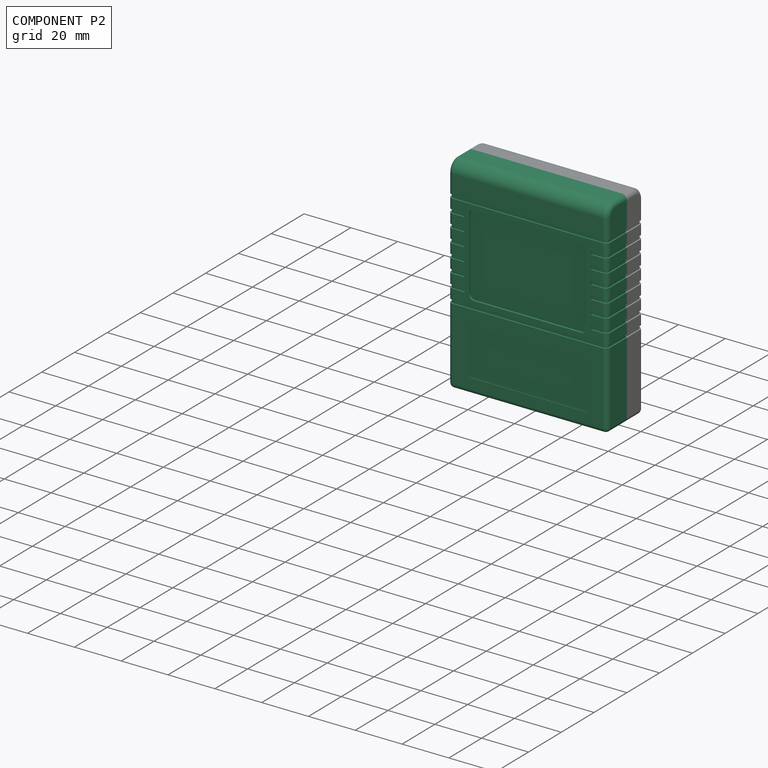
[diagram: component P2 — assembled]
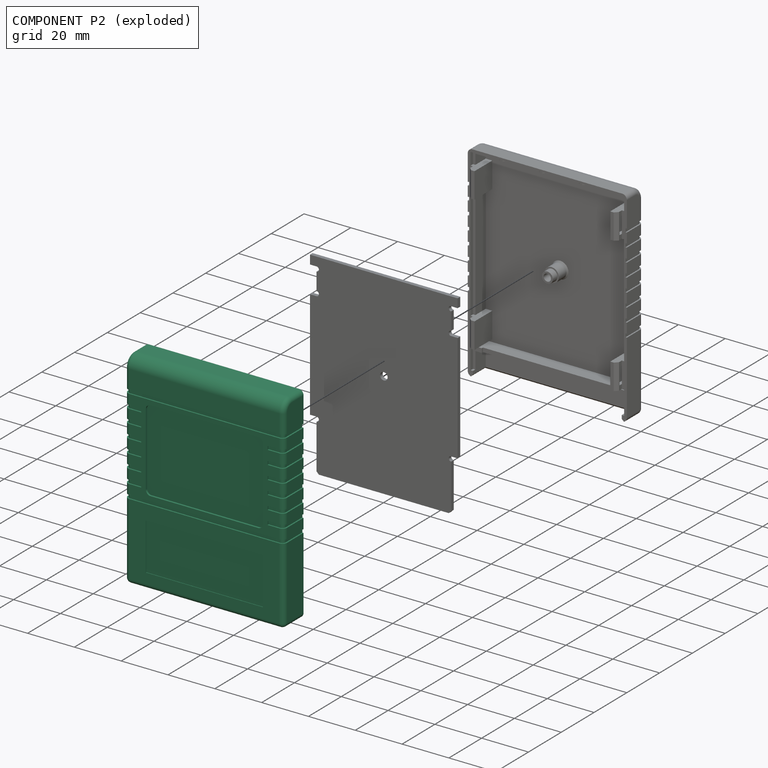
[diagram: component P2 — exploded]
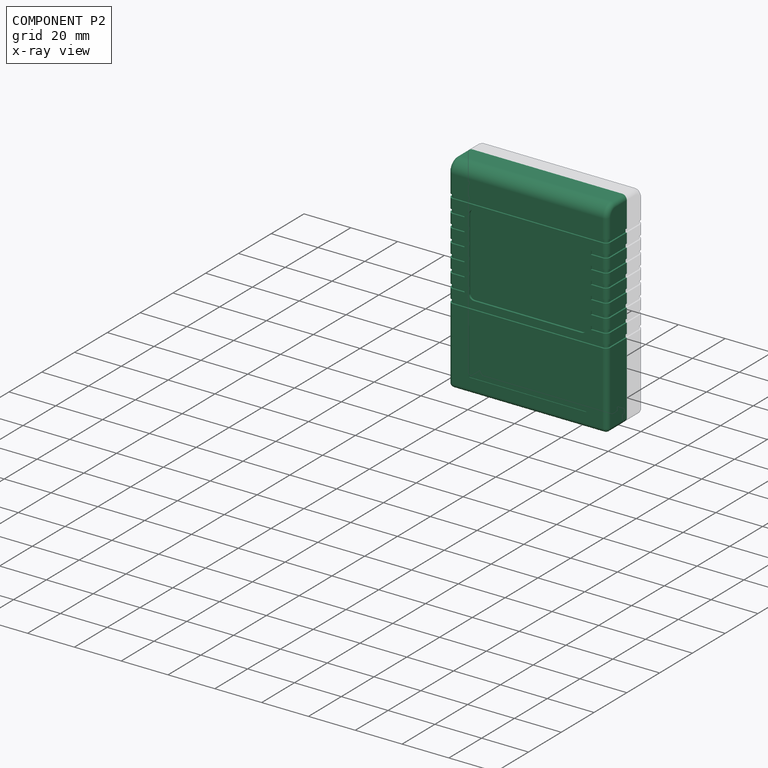
[diagram: component P2 — x-ray view]
COMPONENT P2 — recipe-attached ("top001", modeled in this document).
Held by: resting contact with P0 (derived edge); resting contact with P1 (derived edge).
Construction recipe (the document's own serialized feature program — sketch geometry with constraints, then the solid features built on it; lengths are millimeters unless a unit is written):

FEATURE [Sketcher::SketchObject] Sketch013
  ArcFitTolerance = 1e-06
  AttachmentSupport = -> [YZ_Plane002]
  FullyConstrained = true
  MakeInternals = false
  MapMode = 5
  Placement = pos=(0,0,0) rot=(0.57735,0.57735,0.57735;2.0944rad)
  sketch-geometry (6):
    g0: LineSegment StartX=0 StartY=0 StartZ=0 EndX=0 EndY=-88 EndZ=0
    g1: LineSegment StartX=0 StartY=-88 StartZ=0 EndX=12 EndY=-88 EndZ=0
    g2: LineSegment StartX=12 StartY=-88 StartZ=0 EndX=12 EndY=-5 EndZ=0
    g3: LineSegment StartX=7 StartY=0 StartZ=0 EndX=0 EndY=0 EndZ=0
    g4: ArcOfCircle CenterX=7 CenterY=-5 CenterZ=0 NormalX=0 NormalY=0 NormalZ=1 AngleXU=0 Radius=5 StartAngle=0 EndAngle=1.5708
    g5: GeomPoint [constr] X=12 Y=0 Z=0
  constraints (15):
    c: Coincident(g-1,g0)
    c: PointOnObject(g0,g-2)
    c: Coincident(g0,g1)
    c: Horizontal(g1)
    c: Coincident(g1,g2)
    c: Vertical(g2)
    c: Coincident(g3,g0)
    c: PointOnObject(g5,g-1)
    c: PointOnObject(g5,g2)
    c: PointOnObject(g5,g3)
    c: Tangent(g2,g4) = -1.5708
    c: Tangent(g3,g4) = -1.5708
    c: Radius(g4) = 5
    c: DistanceX(g0,g2) = 12
    c: DistanceY(g0,g0) = 88
FEATURE [PartDesign::Pad] Pad005
  Direction = (1,0,0)
  Length = 68
  Length2 = 10
  Midplane = true
  Placement = pos=(0,0,0) rot=(1,1,1;2.0944rad)
  Profile = -> Sketch013
  ReferenceAxis = -> Sketch013 [N_Axis]
  Refine = true
  Suppressed = false
  Type = 0
FEATURE [PartDesign::Fillet] Fillet002
  Base = -> Pad005 [Edge6,Edge9,Edge5,Edge10,Edge7]
  BaseFeature = -> Pad005
  Placement = pos=(0,0,0) rot=(1,1,1;2.0944rad)
  Radius = 2
  Refine = true
  SupportTransform = false
  Suppressed = false
  UseAllEdges = false
FEATURE [Sketcher::SketchObject] Sketch014
  ArcFitTolerance = 1e-06
  AttachmentSupport = -> [XZ_Plane002]
  FullyConstrained = true
  MakeInternals = false
  MapMode = 5
  Placement = pos=(0,0,0) rot=(1,0,0;1.5708rad)
  sketch-geometry (4):
    g0: LineSegment StartX=-31.8 StartY=-2.2 StartZ=0 EndX=-31.8 EndY=-85.8 EndZ=0
    g1: LineSegment StartX=-31.8 StartY=-85.8 StartZ=0 EndX=31.8 EndY=-85.8 EndZ=0
    g2: LineSegment StartX=31.8 StartY=-85.8 StartZ=0 EndX=31.8 EndY=-2.2 EndZ=0
    g3: LineSegment StartX=31.8 StartY=-2.2 StartZ=0 EndX=-31.8 EndY=-2.2 EndZ=0
  constraints (11):
    c: Coincident(g0,g1)
    c: Coincident(g1,g2)
    c: Coincident(g2,g3)
    c: Coincident(g3,g0)
    c: Vertical(g0)
    c: Vertical(g2)
    c: Horizontal(g1)
    c: Symmetric(g0,g2,g-2)
    c: DistanceY(g2,g-1) = 2.2
    c: DistanceX(g3,g3) = 63.6
    c: DistanceY(g0,g-1) = 85.8
FEATURE [PartDesign::Pocket] Pocket006
  BaseFeature = -> Fillet002
  Direction = (0,1,-2e-16)
  Length = 9.8
  Length2 = 5
  Placement = pos=(0,0,0) rot=(1,1,1;2.0944rad)
  Profile = -> Sketch014
  ReferenceAxis = -> Sketch014 [N_Axis]
  Refine = true
  Suppressed = false
  Type = 0
FEATURE [Sketcher::SketchObject] Sketch015
  ArcFitTolerance = 1e-06
  AttachmentSupport = -> [XZ_Plane002]
  ExternalGeometry = -> [Pocket006]
  FullyConstrained = true
  MakeInternals = false
  MapMode = 5
  Placement = pos=(0,0,0) rot=(1,0,0;1.5708rad)
  sketch-geometry (4):
    g0: LineSegment StartX=-31.8 StartY=-85.8 StartZ=0 EndX=-31.8 EndY=-90.8 EndZ=0
    g1: LineSegment StartX=-31.8 StartY=-90.8 StartZ=0 EndX=31.8 EndY=-90.8 EndZ=0
    g2: LineSegment StartX=31.8 StartY=-90.8 StartZ=0 EndX=31.8 EndY=-85.8 EndZ=0
    g3: LineSegment StartX=31.8 StartY=-85.8 StartZ=0 EndX=-31.8 EndY=-85.8 EndZ=0
  constraints (10):
    c: Coincident(g0,g1)
    c: Coincident(g1,g2)
    c: Coincident(g2,g3)
    c: Coincident(g3,g0)
    c: Vertical(g0)
    c: Vertical(g2)
    c: Horizontal(g1)
    c: Coincident(g0,g-3)
    c: Coincident(g2,g-3)
    c: DistanceY(g2,g2) = 5
FEATURE [PartDesign::Pocket] Pocket007
  BaseFeature = -> Pocket006
  Direction = (0,1,-2e-16)
  Length = 5.5
  Length2 = 5
  Placement = pos=(0,0,0) rot=(1,1,1;2.0944rad)
  Profile = -> Sketch015
  ReferenceAxis = -> Sketch015 [N_Axis]
  Refine = true
  Suppressed = false
  Type = 0
FEATURE [Sketcher::SketchObject] Sketch016
  ArcFitTolerance = 1e-06
  AttachmentSupport = -> [XZ_Plane002]
  ExternalGeometry = -> [Pocket007]
  FullyConstrained = true
  MakeInternals = false
  MapMode = 5
  Placement = pos=(0,0,0) rot=(1,0,0;1.5708rad)
  sketch-geometry (3):
    g0: LineSegment StartX=31.8 StartY=-87 StartZ=0 EndX=31.8 EndY=-88 EndZ=0
    g1: LineSegment StartX=31.8 StartY=-88 StartZ=0 EndX=32.8 EndY=-88 EndZ=0
    g2: LineSegment StartX=32.8 StartY=-88 StartZ=0 EndX=31.8 EndY=-87 EndZ=0
  constraints (8):
    c: Coincident(g0,g1)
    c: Horizontal(g1)
    c: Coincident(g1,g2)
    c: Coincident(g2,g0)
    c: Equal(g0,g1)
    c: Coincident(g0,g-3)
    c: PointOnObject(g0,g-3)
    c: DistanceY(g0,g-3) = 1.2
FEATURE [PartDesign::SubtractivePipe] SubtractivePipe001
  AuxilleryCurvelinear = true
  AuxillerySpineTangent = false
  BaseFeature = -> Pocket007
  Binormal = (0,0,0)
  Mode = 0
  Placement = pos=(0,0,0) rot=(1,1,1;2.0944rad)
  Profile = -> Sketch016
  Refine = true
  Spine = -> Pocket007 [Edge23,Edge24,Edge25]
  SpineTangent = false
  Suppressed = false
  Transformation = 0
  Transition = 1
FEATURE [PartDesign::Fillet] Fillet003
  Base = -> SubtractivePipe001 [Face19]
  BaseFeature = -> SubtractivePipe001
  Placement = pos=(0,0,0) rot=(1,1,1;2.0944rad)
  Radius = 2.8
  Refine = true
  SupportTransform = false
  Suppressed = false
  UseAllEdges = false
FEATURE [Sketcher::SketchObject] Sketch017
  ArcFitTolerance = 1e-06
  AttachmentSupport = -> [XZ_Plane002]
  ExternalGeometry = -> [Pocket007]
  FullyConstrained = true
  MakeInternals = false
  MapMode = 5
  Placement = pos=(0,0,0) rot=(1,0,0;1.5708rad)
  sketch-geometry (16):
    g0: LineSegment StartX=0 StartY=-1.3 StartZ=0 EndX=0 EndY=-2.2 EndZ=0
    g1: LineSegment StartX=0 StartY=-2.2 StartZ=0 EndX=31.8 EndY=-2.2 EndZ=0
    g2: LineSegment StartX=32.8 StartY=-1.3 StartZ=0 EndX=0 EndY=-1.3 EndZ=0
    g3: LineSegment StartX=31.8 StartY=-2.2 StartZ=0 EndX=31.8 EndY=-4.5 EndZ=0
    g4: LineSegment StartX=31.8 StartY=-4.5 StartZ=0 EndX=32.8 EndY=-4.5 EndZ=0
    g5: LineSegment StartX=32.8 StartY=-4.5 StartZ=0 EndX=32.8 EndY=-1.3 EndZ=0
    g6: LineSegment StartX=31.8 StartY=-19.5 StartZ=0 EndX=31.8 EndY=-61.5 EndZ=0
    g7: LineSegment StartX=31.8 StartY=-61.5 StartZ=0 EndX=32.8 EndY=-61.5 EndZ=0
    g8: LineSegment StartX=32.8 StartY=-61.5 StartZ=0 EndX=32.8 EndY=-19.5 EndZ=0
    g9: LineSegment StartX=32.8 StartY=-19.5 StartZ=0 EndX=31.8 EndY=-19.5 EndZ=0
    g10: LineSegment StartX=31.8 StartY=-76.5 StartZ=0 EndX=31.8 EndY=-84.5 EndZ=0
    g11: LineSegment StartX=31.8 StartY=-84.5 StartZ=0 EndX=32.8 EndY=-84.5 EndZ=0
    g12: LineSegment StartX=32.8 StartY=-84.5 StartZ=0 EndX=32.8 EndY=-76.5 EndZ=0
    g13: LineSegment StartX=32.8 StartY=-76.5 StartZ=0 EndX=31.8 EndY=-76.5 EndZ=0
    g14: LineSegment [constr] StartX=32.8 StartY=-88 StartZ=0 EndX=32.8 EndY=-1.3 EndZ=0
    g15: LineSegment [constr] StartX=32.8 StartY=-1.3 StartZ=0 EndX=0 EndY=-1.3 EndZ=0
  constraints (47):
    c: Coincident(g0,g1)
    c: Coincident(g2,g0)
    c: PointOnObject(g0,g-2)
    c: Coincident(g3,g4)
    c: Coincident(g4,g5)
    c: Vertical(g5)
    c: Horizontal(g4)
    c: Coincident(g6,g7)
    c: Coincident(g7,g8)
    c: Coincident(g8,g9)
    c: Coincident(g9,g6)
    c: Vertical(g6)
    c: Vertical(g8)
    c: Horizontal(g7)
    c: Horizontal(g9)
    c: PointOnObject(g6,g-3)
    c: Coincident(g10,g11)
    c: Coincident(g11,g12)
    c: Coincident(g12,g13)
    c: Coincident(g13,g10)
    c: Vertical(g10)
    c: Vertical(g12)
    c: Horizontal(g11)
    c: Horizontal(g13)
    c: PointOnObject(g10,g-3)
    c: Vertical(g14)
    c: Coincident(g15,g14)
    c: PointOnObject(g15,g-2)
    c: Horizontal(g15)
    c: Coincident(g2,g5)
    c: Coincident(g3,g1)
    c: Coincident(g1,g-4)
    c: PointOnObject(g3,g-3)
    c: PointOnObject(g0,g-4)
    c: Vertical(g0)
    c: PointOnObject(g0,g15)
    c: Coincident(g2,g14)
    c: DistanceY(g0,g15) = 0.9
    c: Horizontal(g14,g-3)
    c: DistanceX(g-3,g14) = 1
    c: PointOnObject(g8,g14)
    c: DistanceY(g5,g5) = 3.2
    c: DistanceY(g8,g4) = 15
    c: DistanceY(g8,g8) = 42
    c: DistanceY(g12,g7) = 15
    c: DistanceY(g12,g12) = 8
    c: PointOnObject(g11,g14)
FEATURE [PartDesign::Pad] Pad006
  BaseFeature = -> Fillet003
  Direction = (0,-1,2e-16)
  Length = 1
  Length2 = 10
  Placement = pos=(0,0,0) rot=(1,1,1;2.0944rad)
  Profile = -> Sketch017
  ReferenceAxis = -> Sketch017 [N_Axis]
  Refine = true
  Suppressed = false
  Type = 0
FEATURE [PartDesign::Mirrored] Mirrored001
  BaseFeature = -> Pad006
  MirrorPlane = -> Sketch017 [V_Axis]
  Originals = -> [Pad006]
  Placement = pos=(0,0,0) rot=(1,1,1;2.0944rad)
  Refine = true
  Suppressed = false
  TransformMode = 0
FEATURE [Sketcher::SketchObject] Sketch018
  ArcFitTolerance = 1e-06
  AttachmentOffset = pos=(0,0,-78.4) rot=(0,0,1;0rad)
  AttachmentSupport = -> [XY_Plane002]
  FullyConstrained = true
  MakeInternals = false
  MapMode = 5
  Placement = pos=(0,0,-78.4) rot=(0,0,1;0rad)
  sketch-geometry (4):
    g0: LineSegment StartX=-30.95 StartY=10.5 StartZ=0 EndX=-30.95 EndY=0.5 EndZ=0
    g1: LineSegment StartX=-30.95 StartY=0.5 StartZ=0 EndX=30.95 EndY=0.5 EndZ=0
    g2: LineSegment StartX=30.95 StartY=0.5 StartZ=0 EndX=30.95 EndY=10.5 EndZ=0
    g3: LineSegment StartX=30.95 StartY=10.5 StartZ=0 EndX=-30.95 EndY=10.5 EndZ=0
  constraints (11):
    c: Coincident(g0,g1)
    c: Coincident(g1,g2)
    c: Coincident(g2,g3)
    c: Coincident(g3,g0)
    c: Vertical(g0)
    c: Vertical(g2)
    c: Horizontal(g3)
    c: Symmetric(g0,g1,g-2)
    c: DistanceX(g1,g1) = 61.9
    c: DistanceY(g-1,g1) = 0.5
    c: DistanceY(g2,g2) = 10
FEATURE [PartDesign::Pad] Pad007
  BaseFeature = -> Mirrored001
  Direction = (0,0,1)
  Length = 1.8
  Length2 = 10
  Placement = pos=(0,0,0) rot=(1,1,1;2.0944rad)
  Profile = -> Sketch018
  ReferenceAxis = -> Sketch018 [N_Axis]
  Refine = true
  Suppressed = false
  Type = 0
FEATURE [Sketcher::SketchObject] Sketch019
  ArcFitTolerance = 1e-06
  AttachmentSupport = -> [Pocket006]
  FullyConstrained = true
  MakeInternals = false
  MapMode = 5
  Placement = pos=(0,9.8,0) rot=(0.57735,0.57735,-0.57735;2.0944rad)
  sketch-geometry (1):
    g0: Circle CenterX=41 CenterY=0 CenterZ=0 NormalX=0 NormalY=0 NormalZ=1 AngleXU=0 Radius=3
  constraints (3):
    c: PointOnObject(g0,g-1)
    c: DistanceX(g-1,g0) = 41
    c: Diameter(g0) = 6
FEATURE [PartDesign::Pad] Pad008
  BaseFeature = -> Pad007
  Direction = (0,-1,0)
  Length = 9.8
  Length2 = 10
  Placement = pos=(0,0,0) rot=(1,1,1;2.0944rad)
  Profile = -> Sketch019
  ReferenceAxis = -> Sketch019 [N_Axis]
  Refine = true
  Suppressed = false
  Type = 0
FEATURE [Sketcher::SketchObject] Sketch020
  ArcFitTolerance = 1e-06
  AttachmentSupport = -> [YZ_Plane002]
  FullyConstrained = false
  MakeInternals = false
  MapMode = 5
  Placement = pos=(0,0,0) rot=(0.57735,0.57735,0.57735;2.0944rad)
  sketch-geometry (8):
    g0: LineSegment StartX=0 StartY=-39.3 StartZ=0 EndX=0.363 EndY=-39.663 EndZ=0
    g1: LineSegment StartX=0.363 StartY=-39.663 StartZ=0 EndX=10.2105 EndY=-40.0069 EndZ=0
    g2: LineSegment StartX=10.5 StartY=-40.3067 StartZ=0 EndX=10.5 EndY=-41 EndZ=0
    g3: LineSegment StartX=10.5 StartY=-41 StartZ=0 EndX=0 EndY=-41 EndZ=0
    g4: LineSegment StartX=0 StartY=-41 StartZ=0 EndX=0 EndY=-39.3 EndZ=0
    g5: ArcOfCircle CenterX=10.2 CenterY=-40.3067 CenterZ=0 NormalX=0 NormalY=0 NormalZ=1 AngleXU=0 Radius=0.3 StartAngle=8e-16 EndAngle=1.53589
    g6: GeomPoint [constr] X=10.5 Y=-40.017 Z=0
    g7: LineSegment [constr] StartX=0 StartY=-41 StartZ=0 EndX=-6.16964 EndY=-41 EndZ=0
  constraints (21):
    c: PointOnObject(g0,g-2)
    c: Coincident(g0,g1)
    c: Vertical(g2)
    c: Coincident(g2,g3)
    c: PointOnObject(g3,g-2)
    c: Horizontal(g3)
    c: Coincident(g3,g4)
    c: Coincident(g4,g0)
    c: DistanceX(g3,g3) = 10.5
    c: PointOnObject(g6,g1)
    c: PointOnObject(g6,g2)
    c: Tangent(g1,g5) = 1.5708
    c: Tangent(g2,g5) = 1.5708
    c: Radius(g5) = 0.3
    c: Angle(g1,g3) = 0.0349066
    c: Angle(g4,g0) = 0.785398
    c: DistanceY(g3,g-1) = 41
    c: DistanceY(g4,g4) = 1.7
    c: DistanceX(g3,g0) = 0.363
    c: Coincident(g7,g3)
    c: Horizontal(g7)
FEATURE [PartDesign::Groove] Groove
  Angle = 360
  Angle2 = 60
  Axis = (0,-6.16964,0)
  Base = (0,0,-41)
  BaseFeature = -> Pad008
  Placement = pos=(0,0,0) rot=(1,1,1;2.0944rad)
  Profile = -> Sketch020
  ReferenceAxis = -> Sketch020 [Axis]
  Refine = true
  Suppressed = false
  Type = 0
FEATURE [Sketcher::SketchObject] Sketch021
  ArcFitTolerance = 1e-06
  AttachmentOffset = pos=(0,0,-12) rot=(0,0,1;0rad)
  AttachmentSupport = -> [XZ_Plane002]
  FullyConstrained = true
  MakeInternals = false
  MapMode = 5
  Placement = pos=(0,12,-2.7e-15) rot=(1,0,0;1.5708rad)
  sketch-geometry (5):
    g0: LineSegment StartX=-25 StartY=-81.6 StartZ=0 EndX=25 EndY=-81.6 EndZ=0
    g1: LineSegment StartX=25 StartY=-81.6 StartZ=0 EndX=25 EndY=-61.6 EndZ=0
    g2: LineSegment StartX=25 StartY=-61.6 StartZ=0 EndX=-25 EndY=-61.6 EndZ=0
    g3: LineSegment StartX=-25 StartY=-61.6 StartZ=0 EndX=-25 EndY=-81.6 EndZ=0
    g4: GeomPoint [constr] X=0 Y=-71.6 Z=0
  constraints (13):
    c: Coincident(g0,g1)
    c: Coincident(g1,g2)
    c: Coincident(g2,g3)
    c: Coincident(g3,g0)
    c: Horizontal(g0)
    c: Horizontal(g2)
    c: Vertical(g1)
    c: Vertical(g3)
    c: Symmetric(g2,g0,g4)
    c: PointOnObject(g4,g-2)
    c: DistanceX(g2,g2) = 50
    c: DistanceY(g3,g3) = 20
    c: DistanceY(g2,g-1) = 61.6
FEATURE [PartDesign::Pocket] Pocket008
  BaseFeature = -> Groove
  Direction = (0,1,-2e-16)
  Length = 0.25
  Length2 = 5
  Placement = pos=(0,0,0) rot=(1,1,1;2.0944rad)
  Profile = -> Sketch021
  ReferenceAxis = -> Sketch021 [N_Axis]
  Refine = true
  Reversed = true
  Suppressed = false
  Type = 0
FEATURE [Sketcher::SketchObject] Sketch022
  ArcFitTolerance = 1e-06
  AttachmentOffset = pos=(0,0,-12) rot=(0,0,1;0rad)
  AttachmentSupport = -> [XZ_Plane002]
  FullyConstrained = true
  MakeInternals = false
  MapMode = 5
  Placement = pos=(0,12,-2.7e-15) rot=(1,0,0;1.5708rad)
  sketch-geometry (11):
    g0: GeomPoint X=0 Y=-34.05 Z=0
    g1: LineSegment StartX=-25 StartY=-18.55 StartZ=0 EndX=-25 EndY=-49.55 EndZ=0
    g2: LineSegment StartX=-23 StartY=-51.55 StartZ=0 EndX=23 EndY=-51.55 EndZ=0
    g3: LineSegment StartX=25 StartY=-49.55 StartZ=0 EndX=25 EndY=-18.55 EndZ=0
    g4: LineSegment StartX=23 StartY=-16.55 StartZ=0 EndX=-23 EndY=-16.55 EndZ=0
    g5: ArcOfCircle CenterX=-23 CenterY=-18.55 CenterZ=0 NormalX=0 NormalY=0 NormalZ=1 AngleXU=0 Radius=2 StartAngle=1.5708 EndAngle=3.14159
    g6: ArcOfCircle CenterX=-23 CenterY=-49.55 CenterZ=0 NormalX=0 NormalY=0 NormalZ=1 AngleXU=0 Radius=2 StartAngle=3.14159 EndAngle=4.71239
    g7: ArcOfCircle CenterX=23 CenterY=-49.55 CenterZ=0 NormalX=0 NormalY=0 NormalZ=1 AngleXU=0 Radius=2 StartAngle=4.71239 EndAngle=6.28319
    g8: ArcOfCircle CenterX=23 CenterY=-18.55 CenterZ=0 NormalX=0 NormalY=0 NormalZ=1 AngleXU=0 Radius=2 StartAngle=-1.75e-13 EndAngle=1.5708
    g9: GeomPoint [constr] X=-25 Y=-16.55 Z=0
    g10: GeomPoint [constr] X=25 Y=-51.55 Z=0
  constraints (25):
    c: PointOnObject(g0,g-2)
    c: Tangent(g1,g5) = -1.5708
    c: Tangent(g1,g6) = -1.5708
    c: Tangent(g2,g6) = -1.5708
    c: Tangent(g2,g7) = -1.5708
    c: Tangent(g3,g7) = -1.5708
    c: Tangent(g3,g8) = -1.5708
    c: Tangent(g4,g8) = -1.5708
    c: Tangent(g4,g5) = -1.5708
    c: Vertical(g1)
    c: Vertical(g3)
    c: Horizontal(g2)
    c: Horizontal(g4)
    c: Equal(g5,g6)
    c: Equal(g6,g7)
    c: Equal(g7,g8)
    c: PointOnObject(g9,g1)
    c: PointOnObject(g9,g4)
    c: PointOnObject(g10,g2)
    c: PointOnObject(g10,g3)
    c: Symmetric(g10,g9,g0)
    c: Radius(g8) = 2
    c: DistanceX(g1,g3) = 50
    c: DistanceY(g4,g-1) = 16.55
    c: DistanceY(g2,g4) = 35
FEATURE [PartDesign::Pocket] Pocket009
  BaseFeature = -> Pocket008
  Direction = (0,1,-2e-16)
  Length = 0.8
  Length2 = 5
  Placement = pos=(0,0,0) rot=(1,1,1;2.0944rad)
  Profile = -> Sketch022
  ReferenceAxis = -> Sketch022 [N_Axis]
  Refine = true
  Reversed = true
  Suppressed = false
  Type = 0
FEATURE [Sketcher::SketchObject] Sketch023
  ArcFitTolerance = 1e-06
  AttachmentOffset = pos=(0,0,-55.1) rot=(0,0,1;0rad)
  AttachmentSupport = -> [XY_Plane002]
  ExternalGeometry = -> [Fillet002]
  FullyConstrained = true
  MakeInternals = false
  MapMode = 5
  Placement = pos=(0,0,-55.1) rot=(0,0,1;0rad)
  sketch-geometry (12):
    g0: LineSegment StartX=-33.4 StartY=0 StartZ=0 EndX=-33.4 EndY=10 EndZ=0
    g1: LineSegment StartX=-32 StartY=11.4 StartZ=0 EndX=32 EndY=11.4 EndZ=0
    g2: LineSegment StartX=33.4 StartY=10 StartZ=0 EndX=33.4 EndY=0 EndZ=0
    g3: LineSegment StartX=33.4 StartY=0 StartZ=0 EndX=38.4 EndY=0 EndZ=0
    g4: LineSegment StartX=38.4 StartY=0 StartZ=0 EndX=38.4 EndY=15 EndZ=0
    g5: LineSegment StartX=38.4 StartY=15 StartZ=0 EndX=-38.4 EndY=15 EndZ=0
    g6: LineSegment StartX=-38.4 StartY=15 StartZ=0 EndX=-38.4 EndY=0 EndZ=0
    g7: LineSegment StartX=-38.4 StartY=0 StartZ=0 EndX=-33.4 EndY=0 EndZ=0
    g8: ArcOfCircle CenterX=-32 CenterY=10 CenterZ=0 NormalX=0 NormalY=0 NormalZ=1 AngleXU=0 Radius=1.4 StartAngle=1.5708 EndAngle=3.14159
    g9: GeomPoint [constr] X=-33.4 Y=11.4 Z=0
    g10: ArcOfCircle CenterX=32 CenterY=10 CenterZ=0 NormalX=0 NormalY=0 NormalZ=1 AngleXU=0 Radius=1.4 StartAngle=0 EndAngle=1.5708
    g11: GeomPoint [constr] X=33.4 Y=11.4 Z=0
  constraints (30):
    c: PointOnObject(g0,g-1)
    c: Vertical(g0)
    c: PointOnObject(g2,g-1)
    c: Vertical(g2)
    c: Coincident(g2,g3)
    c: PointOnObject(g3,g-1)
    c: Coincident(g3,g4)
    c: Vertical(g4)
    c: Coincident(g4,g5)
    c: Horizontal(g5)
    c: Coincident(g5,g6)
    c: PointOnObject(g6,g-1)
    c: Vertical(g6)
    c: Coincident(g6,g7)
    c: Coincident(g7,g0)
    c: Symmetric(g11,g9,g-2)
    c: PointOnObject(g9,g0)
    c: PointOnObject(g9,g1)
    c: Tangent(g0,g8) = 1.5708
    c: Tangent(g1,g8) = 1.5708
    c: PointOnObject(g11,g1)
    c: PointOnObject(g11,g2)
    c: Tangent(g1,g10) = 1.5708
    c: Tangent(g2,g10) = 1.5708
    c: Coincident(g8,g-3)
    c: DistanceY(g1,g-3) = 0.6
    c: Equal(g10,g8)
    c: Equal(g7,g3)
    c: DistanceX(g3,g3) = 5
    c: DistanceY(g4,g4) = 15
FEATURE [PartDesign::Pocket] Pocket010
  BaseFeature = -> Pocket009
  Direction = (0,0,-1)
  Length = 1.5
  Length2 = 5
  Placement = pos=(0,0,0) rot=(1,1,1;2.0944rad)
  Profile = -> Sketch023
  ReferenceAxis = -> Sketch023 [N_Axis]
  Refine = true
  Reversed = true
  Suppressed = false
  Type = 0
FEATURE [PartDesign::LinearPattern] LinearPattern001
  BaseFeature = -> Pocket010
  Direction = -> Z_Axis002
  Length = 40.6
  Mode = 0
  Occurrences = 2
  Offset = 40.6
  Originals = -> [Pocket010]
  Placement = pos=(0,0,0) rot=(1,1,1;2.0944rad)
  Refine = true
  Suppressed = false
  TransformMode = 0
FEATURE [Sketcher::SketchObject] Sketch024
  ArcFitTolerance = 1e-06
  AttachmentOffset = pos=(0,0,-49.3) rot=(0,0,1;0rad)
  AttachmentSupport = -> [XY_Plane002]
  ExternalGeometry = -> [Fillet002]
  FullyConstrained = true
  MakeInternals = false
  MapMode = 5
  Placement = pos=(0,0,-49.3) rot=(0,0,1;0rad)
  sketch-geometry (16):
    g0: LineSegment StartX=-33.4 StartY=0 StartZ=0 EndX=-33.4 EndY=10 EndZ=0
    g1: LineSegment StartX=33.4 StartY=10 StartZ=0 EndX=33.4 EndY=0 EndZ=0
    g2: LineSegment StartX=33.4 StartY=0 StartZ=0 EndX=38.4 EndY=0 EndZ=0
    g3: LineSegment StartX=38.4 StartY=0 StartZ=0 EndX=38.4 EndY=15 EndZ=0
    g4: LineSegment StartX=38.4 StartY=15 StartZ=0 EndX=-38.4 EndY=15 EndZ=0
    g5: LineSegment StartX=-38.4 StartY=15 StartZ=0 EndX=-38.4 EndY=0 EndZ=0
    g6: LineSegment StartX=-38.4 StartY=0 StartZ=0 EndX=-33.4 EndY=0 EndZ=0
    g7: ArcOfCircle CenterX=32 CenterY=10 CenterZ=0 NormalX=0 NormalY=0 NormalZ=1 AngleXU=0 Radius=1.4 StartAngle=4e-16 EndAngle=1.5708
    g8: GeomPoint [constr] X=33.4 Y=11.4 Z=0
    g9: ArcOfCircle CenterX=-32 CenterY=10 CenterZ=0 NormalX=0 NormalY=0 NormalZ=1 AngleXU=0 Radius=1.4 StartAngle=1.5708 EndAngle=3.14159
    g10: GeomPoint [constr] X=-33.4 Y=11.4 Z=0
    g11: LineSegment StartX=-32 StartY=11.4 StartZ=0 EndX=-27 EndY=11.4 EndZ=0
    g12: LineSegment StartX=27 StartY=11.4 StartZ=0 EndX=32 EndY=11.4 EndZ=0
    g13: LineSegment StartX=27 StartY=13.4 StartZ=0 EndX=27 EndY=11.4 EndZ=0
    g14: LineSegment StartX=-27 StartY=11.4 StartZ=0 EndX=-27 EndY=13.4 EndZ=0
    g15: LineSegment StartX=-27 StartY=13.4 StartZ=0 EndX=27 EndY=13.4 EndZ=0
  constraints (42):
    c: PointOnObject(g0,g-1)
    c: Vertical(g0)
    c: PointOnObject(g1,g-1)
    c: Vertical(g1)
    c: Coincident(g1,g2)
    c: PointOnObject(g2,g-1)
    c: Coincident(g2,g3)
    c: Vertical(g3)
    c: Coincident(g3,g4)
    c: Horizontal(g4)
    c: Coincident(g4,g5)
    c: PointOnObject(g5,g-1)
    c: Vertical(g5)
    c: Coincident(g5,g6)
    c: Coincident(g6,g0)
    c: Symmetric(g10,g8,g-2)
    c: Equal(g2,g6)
    c: DistanceX(g2,g2) = 5
    c: DistanceY(g3,g3) = 15
    c: PointOnObject(g8,g1)
    c: Tangent(g1,g7) = 1.5708
    c: PointOnObject(g10,g0)
    c: Tangent(g0,g9) = 1.5708
    c: Equal(g9,g7)
    c: Coincident(g7,g-3)
    c: DistanceY(g12,g-3) = 0.6
    c: Coincident(g11,g14)
    c: PointOnObject(g10,g11)
    c: Coincident(g13,g12)
    c: PointOnObject(g8,g12)
    c: Coincident(g15,g13)
    c: Coincident(g14,g15)
    c: DistanceX(g11,g11) = 5
    c: Vertical(g14)
    c: DistanceX(g12,g12) = 5
    c: Vertical(g13)
    c: Horizontal(g12)
    c: Horizontal(g11)
    c: Horizontal(g15)
    c: Tangent(g11,g9) = 1.5708
    c: Tangent(g12,g7) = 1.5708
    c: DistanceY(g13,g13) = 2
FEATURE [PartDesign::Pocket] Pocket011
  BaseFeature = -> LinearPattern001
  Direction = (0,0,-1)
  Length = 1.5
  Length2 = 5
  Placement = pos=(0,0,0) rot=(1,1,1;2.0944rad)
  Profile = -> Sketch024
  ReferenceAxis = -> Sketch024 [N_Axis]
  Refine = true
  Reversed = true
  Suppressed = false
  Type = 0
FEATURE [PartDesign::LinearPattern] LinearPattern002
  BaseFeature = -> Pocket011
  Direction = -> Z_Axis002
  Length = 29
  Mode = 0
  Occurrences = 6
  Offset = 5.8
  Originals = -> [Pocket011]
  Placement = pos=(0,0,0) rot=(1,1,1;2.0944rad)
  Refine = true
  Suppressed = false
  TransformMode = 0
FEATURE [Sketcher::SketchObject] Sketch025
  ArcFitTolerance = 1e-06
  AttachmentOffset = pos=(0,0,-2.2) rot=(0,0,1;0rad)
  AttachmentSupport = -> [XY_Plane002]
  FullyConstrained = true
  MakeInternals = false
  MapMode = 5
  Placement = pos=(0,0,-2.2) rot=(0,0,1;0rad)
  sketch-geometry (13):
    g0: ArcOfCircle CenterX=-17 CenterY=0 CenterZ=0 NormalX=0 NormalY=0 NormalZ=1 AngleXU=0 Radius=3.5 StartAngle=1e-16 EndAngle=3.14159
    g1: LineSegment StartX=-13.5 StartY=4e-16 StartZ=0 EndX=-13.5 EndY=-5 EndZ=0
    g2: LineSegment StartX=-20.5 StartY=-6.648e-13 StartZ=0 EndX=-20.5 EndY=-5 EndZ=0
    g3: ArcOfCircle CenterX=17 CenterY=0 CenterZ=0 NormalX=0 NormalY=0 NormalZ=1 AngleXU=0 Radius=3.5 StartAngle=1e-16 EndAngle=3.14159
    g4: LineSegment StartX=20.5 StartY=4e-16 StartZ=0 EndX=20.5 EndY=-5 EndZ=0
    g5: LineSegment StartX=13.5 StartY=4e-16 StartZ=0 EndX=13.5 EndY=-5 EndZ=0
    g6: ArcOfCircle CenterX=0 CenterY=0 CenterZ=0 NormalX=0 NormalY=0 NormalZ=1 AngleXU=0 Radius=3.5 StartAngle=1e-16 EndAngle=3.14159
    g7: LineSegment StartX=3.5 StartY=4e-16 StartZ=0 EndX=3.5 EndY=-5 EndZ=0
    g8: LineSegment StartX=-3.5 StartY=4e-16 StartZ=0 EndX=-3.5 EndY=-5 EndZ=0
    g9: LineSegment [constr] StartX=-20.5 StartY=-5 StartZ=0 EndX=20.5 EndY=-5 EndZ=0
    g10: LineSegment StartX=-20.5 StartY=-5 StartZ=0 EndX=-13.5 EndY=-5 EndZ=0
    g11: LineSegment StartX=-3.5 StartY=-5 StartZ=0 EndX=3.5 EndY=-5 EndZ=0
    g12: LineSegment StartX=13.5 StartY=-5 StartZ=0 EndX=20.5 EndY=-5 EndZ=0
  constraints (34):
    c: Tangent(g0,g1) = 1.5708
    c: Tangent(g0,g2) = -1.5708
    c: PointOnObject(g0,g-1)
    c: Vertical(g1)
    c: Tangent(g3,g4) = 1.5708
    c: Tangent(g3,g5) = -1.5708
    c: PointOnObject(g3,g-1)
    c: Tangent(g6,g7) = 1.5708
    c: Tangent(g6,g8) = -1.5708
    c: Coincident(g9,g2)
    c: Coincident(g9,g4)
    c: Horizontal(g9)
    c: Coincident(g10,g2)
    c: Coincident(g10,g1)
    c: Horizontal(g10)
    c: Coincident(g11,g8)
    c: Coincident(g11,g7)
    c: Horizontal(g11)
    c: Coincident(g12,g5)
    c: Coincident(g12,g4)
    c: Vertical(g5)
    c: Vertical(g4)
    c: PointOnObject(g5,g9)
    c: PointOnObject(g7,g9)
    c: Equal(g0,g6)
    c: Equal(g6,g3)
    c: Radius(g3) = 3.5
    c: Coincident(g6,g-1)
    c: Vertical(g7)
    c: Vertical(g8)
    c: DistanceY(g7,g7) = 5
    c: DistanceX(g6,g3) = 17
    c: DistanceX(g0,g6) = 17
    c: Vertical(g2)
FEATURE [PartDesign::Pocket] Pocket012
  BaseFeature = -> LinearPattern002
  Direction = (0,0,-1)
  Length = 1.7
  Length2 = 5
  Placement = pos=(0,0,0) rot=(1,1,1;2.0944rad)
  Profile = -> Sketch025
  ReferenceAxis = -> Sketch025 [N_Axis]
  Refine = true
  Reversed = true
  Suppressed = false
  Type = 0
FEATURE [PartDesign::Body] Body001  label="top"
  AllowCompound = false
  Group = -> [Sketch013,Pad005,Fillet002,Sketch014,Pocket006,Sketch015,Pocket007,Sketch016,SubtractivePipe001,Fillet003,Sketch017,Pad006,Mirrored001,Sketch018,Pad007,Sketch019,Pad008,Sketch020,Groove,Sketch021,Pocket008,Sketch022,Pocket009,Sketch023,Pocket010,LinearPattern001,Sketch024,Pocket011,LinearPattern002,Sketch025,Pocket012]
  Origin = -> Origin002
  Tip = -> Pocket012
PROVENANCE & LICENSES
Assembly and component geometry: a FreeCAD (.FCStd) document from a public repository crawl; components, placements and joints were extracted with FreeCAD and each solid tessellated.
Construction recipes: the document's own serialized feature recipes (and, for linked parts, the recipes of companion documents from the same project).
License: unlicense.
Joints: native FreeCAD joints and A2plus constraints are mapped to standard mate types; edges marked 'derived from contact' connect touching components and are measured from the geometry, not modeled.
Verification: 3 of this assembly's 3 components carry a construction recipe (3 from this document itself); the rest are geometry-only. Every component's tessellation passed the extraction mesh gates (mesh-volume checksum against the B-rep where available, bounding-box inflation <= 2%).
Renders: orthographic iso camera (az 35 / el 25); the floor grid conveys scale (grid pitch printed in each image; no ruler). In the exploded view each component is displaced by its stored offset vector: the offsets alone carry the explosion direction (mate normal/axis signs are not orientation cues and do not encode it), and separation distances are assigned per mate-chain, not proportionally to assembly-order depth.
